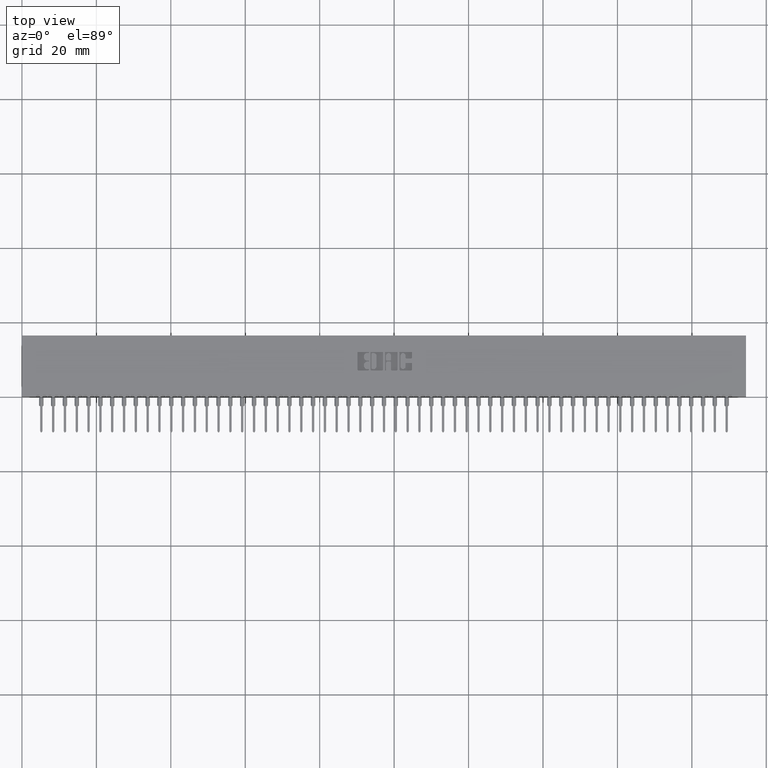
[diagram: clean part render]
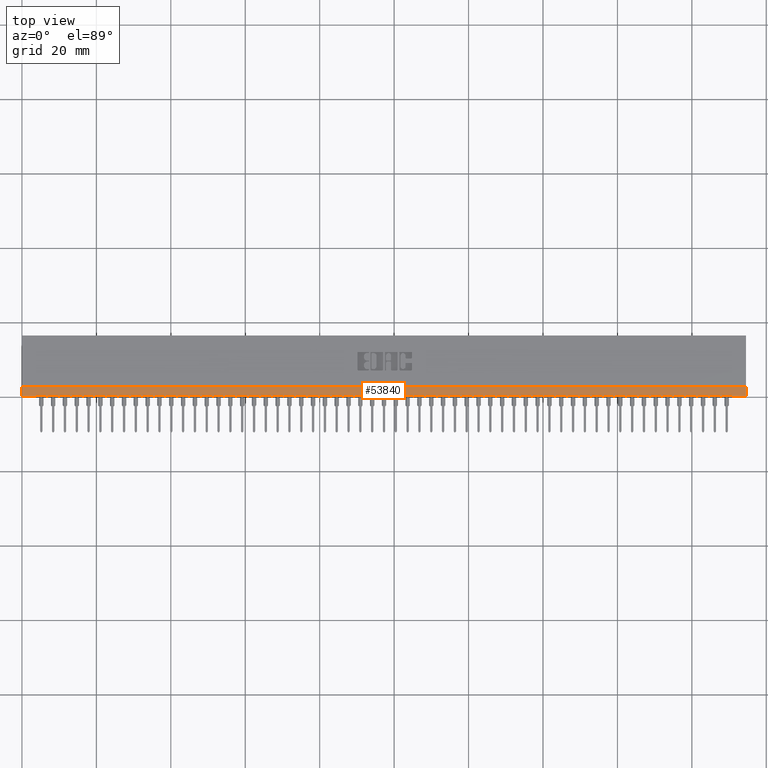
[diagram: same view with one face highlighted and labeled with its STEP entity id]
A machine part, top view. The second image highlights one B-rep face of the part: STEP entity #53840.
In plain terms, the highlighted planar face has unit normal (0, 0, -1).
Its self-contained STEP definition (entity closure, byte-faithful):
#89 = DIRECTION ( 'NONE',  ( -0.0000000000000000000, 0.0000000000000000000, 1.000000000000000000 ) ) ;
#309 = LINE ( 'NONE', #55051, #30331 ) ;
#367 = VERTEX_POINT ( 'NONE', #25465 ) ;
#446 = DIRECTION ( 'NONE',  ( 1.000000000000000000, -0.0000000000000000000, -2.307304048702925122E-16 ) ) ;
#470 = VECTOR ( 'NONE', #79859, 39.37007874015748143 ) ;
#522 = DIRECTION ( 'NONE',  ( 1.000000000000000000, -0.0000000000000000000, -2.307304048702925122E-16 ) ) ;
#548 = CARTESIAN_POINT ( 'NONE',  ( 7.407499999999998863, 0.01499999999999997169, -0.02500000000000000486 ) ) ;
#567 = ORIENTED_EDGE ( 'NONE', *, *, #67884, .T. ) ;
#638 = LINE ( 'NONE', #9580, #42844 ) ;
#649 = EDGE_CURVE ( 'NONE', #25086, #1418, #24449, .T. ) ;
#869 = CARTESIAN_POINT ( 'NONE',  ( 7.002499999999999503, 0.01499999999999997169, -0.02500000000000000486 ) ) ;
#894 = EDGE_CURVE ( 'NONE', #21151, #81148, #66125, .T. ) ;
#923 = DIRECTION ( 'NONE',  ( -0.0000000000000000000, 0.0000000000000000000, 1.000000000000000000 ) ) ;
#1099 = LINE ( 'NONE', #68873, #9127 ) ;
#1418 = VERTEX_POINT ( 'NONE', #77551 ) ;
#1555 = VERTEX_POINT ( 'NONE', #12038 ) ;
#1594 = VERTEX_POINT ( 'NONE', #66740 ) ;
#1644 = LINE ( 'NONE', #76136, #21243 ) ;
#1691 = CARTESIAN_POINT ( 'NONE',  ( 0.3924999999999996825, 0.01499999999999997169, -0.02500000000000000486 ) ) ;
#1698 = VECTOR ( 'NONE', #29809, 39.37007874015748143 ) ;
#1824 = DIRECTION ( 'NONE',  ( 1.000000000000000000, 0.0000000000000000000, 0.0000000000000000000 ) ) ;
#1828 = AXIS2_PLACEMENT_3D ( 'NONE', #80375, #51238, #24320 ) ;
#1832 = AXIS2_PLACEMENT_3D ( 'NONE', #43497, #12068, #25957 ) ;
#1988 = CARTESIAN_POINT ( 'NONE',  ( 7.267499999999999183, 0.01499999999999997169, -0.02500000000000000486 ) ) ;
#2047 = DIRECTION ( 'NONE',  ( -0.0000000000000000000, 0.0000000000000000000, 1.000000000000000000 ) ) ;
#2123 = VERTEX_POINT ( 'NONE', #11932 ) ;
#2132 = VERTEX_POINT ( 'NONE', #25826 ) ;
#2216 = CARTESIAN_POINT ( 'NONE',  ( 5.282499999999998863, 0.01499999999999997169, -0.02500000000000000486 ) ) ;
#2250 = AXIS2_PLACEMENT_3D ( 'NONE', #78733, #17286, #25327 ) ;
#2257 = CARTESIAN_POINT ( 'NONE',  ( 5.032499999999999751, 0.01499999999999997169, -0.02500000000000000486 ) ) ;
#2314 = DIRECTION ( 'NONE',  ( -0.0000000000000000000, 0.0000000000000000000, 1.000000000000000000 ) ) ;
#2399 = CARTESIAN_POINT ( 'NONE',  ( 6.627499999999999503, 0.01499999999999997169, -0.02500000000000000486 ) ) ;
#2461 = EDGE_CURVE ( 'NONE', #16832, #24253, #47584, .T. ) ;
#2489 = VERTEX_POINT ( 'NONE', #32913 ) ;
#2826 = DIRECTION ( 'NONE',  ( 1.000000000000000000, 0.0000000000000000000, 0.0000000000000000000 ) ) ;
#2915 = CIRCLE ( 'NONE', #30151, 0.01499999999999970281 ) ;
#2945 = LINE ( 'NONE', #24461, #13525 ) ;
#3104 = CARTESIAN_POINT ( 'NONE',  ( 5.002500000000000391, 0.01499999999999997169, -0.02500000000000000486 ) ) ;
#3132 = EDGE_CURVE ( 'NONE', #64035, #45987, #33514, .T. ) ;
#3202 = AXIS2_PLACEMENT_3D ( 'NONE', #20953, #68069, #75232 ) ;
#3341 = LINE ( 'NONE', #79924, #41607 ) ;
#3435 = DIRECTION ( 'NONE',  ( 1.000000000000000000, -0.0000000000000000000, -2.307304048702925122E-16 ) ) ;
#3464 = ORIENTED_EDGE ( 'NONE', *, *, #86559, .T. ) ;
#3621 = DIRECTION ( 'NONE',  ( -1.000000000000000000, -0.0000000000000000000, -0.0000000000000000000 ) ) ;
#3629 = CARTESIAN_POINT ( 'NONE',  ( 2.627499999999999947, 0.01499999999999997169, -0.02500000000000000486 ) ) ;
#3754 = DIRECTION ( 'NONE',  ( 1.000000000000000000, 0.0000000000000000000, 0.0000000000000000000 ) ) ;
#3912 = CARTESIAN_POINT ( 'NONE',  ( 4.308999999999999275, 0.01499999999999999424, -0.02500000000000003608 ) ) ;
#4038 = LINE ( 'NONE', #80286, #50246 ) ;
#4200 = DIRECTION ( 'NONE',  ( 1.000000000000000000, 0.0000000000000000000, 0.0000000000000000000 ) ) ;
#4585 = EDGE_CURVE ( 'NONE', #46723, #21055, #56684, .T. ) ;
#4639 = CIRCLE ( 'NONE', #84788, 0.01500000000000024925 ) ;
#4944 = VERTEX_POINT ( 'NONE', #69690 ) ;
#4956 = AXIS2_PLACEMENT_3D ( 'NONE', #54286, #49324, #48889 ) ;
#5081 = ORIENTED_EDGE ( 'NONE', *, *, #63982, .T. ) ;
#5139 = ORIENTED_EDGE ( 'NONE', *, *, #86544, .T. ) ;
#5212 = CARTESIAN_POINT ( 'NONE',  ( 7.517499999999998295, 0.01499999999999997169, -0.02500000000000000486 ) ) ;
#5604 = ORIENTED_EDGE ( 'NONE', *, *, #649, .T. ) ;
#5611 = VERTEX_POINT ( 'NONE', #25117 ) ;
#5795 = DIRECTION ( 'NONE',  ( -0.0000000000000000000, 0.0000000000000000000, 1.000000000000000000 ) ) ;
#5846 = CARTESIAN_POINT ( 'NONE',  ( 3.017499999999999627, 0.01499999999999997169, -0.02500000000000000486 ) ) ;
#5896 = ORIENTED_EDGE ( 'NONE', *, *, #3132, .T. ) ;
#5947 = ORIENTED_EDGE ( 'NONE', *, *, #10714, .T. ) ;
#6132 = CIRCLE ( 'NONE', #1832, 0.01499999999999970281 ) ;
#6141 = ORIENTED_EDGE ( 'NONE', *, *, #45126, .T. ) ;
#6149 = EDGE_CURVE ( 'NONE', #40741, #11549, #22462, .T. ) ;
#6198 = EDGE_CURVE ( 'NONE', #73315, #74325, #13927, .T. ) ;
#6229 = EDGE_CURVE ( 'NONE', #1594, #58783, #83159, .T. ) ;
#6364 = VECTOR ( 'NONE', #81389, 39.37007874015748143 ) ;
#6367 = DIRECTION ( 'NONE',  ( -0.0000000000000000000, 0.0000000000000000000, 1.000000000000000000 ) ) ;
#6462 = DIRECTION ( 'NONE',  ( 1.000000000000000000, -0.0000000000000000000, -2.307304048702925122E-16 ) ) ;
#6541 = CARTESIAN_POINT ( 'NONE',  ( 4.767500000000000071, 0.01499999999999997169, -0.02500000000000000486 ) ) ;
#6570 = AXIS2_PLACEMENT_3D ( 'NONE', #26424, #5795, #60521 ) ;
#6610 = EDGE_CURVE ( 'NONE', #11984, #69718, #41821, .T. ) ;
#6676 = LINE ( 'NONE', #82461, #45361 ) ;
#6795 = CARTESIAN_POINT ( 'NONE',  ( 7.017499999999999183, 0.01499999999999997169, -0.02500000000000000486 ) ) ;
#6895 = CARTESIAN_POINT ( 'NONE',  ( 6.183999999999998387, 0.01499999999999999424, -0.02500000000000003608 ) ) ;
#6921 = LINE ( 'NONE', #49501, #74969 ) ;
#6985 = VECTOR ( 'NONE', #47713, 39.37007874015748143 ) ;
#6989 = DIRECTION ( 'NONE',  ( 1.000000000000000000, 0.0000000000000000000, 0.0000000000000000000 ) ) ;
#7025 = VERTEX_POINT ( 'NONE', #62330 ) ;
#7026 = VERTEX_POINT ( 'NONE', #76668 ) ;
#7321 = CARTESIAN_POINT ( 'NONE',  ( 3.377499999999999503, 0.01499999999999997169, -0.02500000000000000486 ) ) ;
#7363 = EDGE_CURVE ( 'NONE', #39398, #7554, #34089, .T. ) ;
#7408 = CARTESIAN_POINT ( 'NONE',  ( 3.532499999999999751, 0.01499999999999997169, -0.02500000000000000486 ) ) ;
#7436 = CARTESIAN_POINT ( 'NONE',  ( 0.6839999999999997193, 0.01499999999999999424, -0.02500000000000003608 ) ) ;
#7444 = VERTEX_POINT ( 'NONE', #75930 ) ;
#7495 = CARTESIAN_POINT ( 'NONE',  ( 1.252499999999999503, 0.01499999999999997169, -0.02500000000000000486 ) ) ;
#7554 = VERTEX_POINT ( 'NONE', #548 ) ;
#7685 = CARTESIAN_POINT ( 'NONE',  ( 5.752499999999999503, 0.01499999999999997169, -0.02500000000000000486 ) ) ;
#7808 = DIRECTION ( 'NONE',  ( -0.0000000000000000000, 0.0000000000000000000, 1.000000000000000000 ) ) ;
#7841 = ORIENTED_EDGE ( 'NONE', *, *, #87014, .T. ) ;
#7900 = ORIENTED_EDGE ( 'NONE', *, *, #51450, .T. ) ;
#7913 = CARTESIAN_POINT ( 'NONE',  ( 1.157499999999999751, 0.01499999999999997169, -0.02500000000000000486 ) ) ;
#7917 = CARTESIAN_POINT ( 'NONE',  ( 2.377499999999999503, 0.01499999999999997169, -0.02500000000000000486 ) ) ;
#7982 = VERTEX_POINT ( 'NONE', #55619 ) ;
#8070 = EDGE_CURVE ( 'NONE', #23116, #12370, #37023, .T. ) ;
#8104 = CIRCLE ( 'NONE', #13899, 0.01500000000000024925 ) ;
#8143 = CARTESIAN_POINT ( 'NONE',  ( 4.058999999999999275, 0.01499999999999999424, -0.02500000000000003608 ) ) ;
#8250 = VECTOR ( 'NONE', #54409, 39.37007874015748143 ) ;
#8251 = CARTESIAN_POINT ( 'NONE',  ( 1.377499999999999725, 0.01499999999999997169, -0.02500000000000000486 ) ) ;
#8345 = VERTEX_POINT ( 'NONE', #46586 ) ;
#8511 = LINE ( 'NONE', #35439, #88276 ) ;
#8577 = CARTESIAN_POINT ( 'NONE',  ( 6.767499999999999183, 0.01499999999999997169, -0.02500000000000000486 ) ) ;
#8853 = EDGE_CURVE ( 'NONE', #57873, #73315, #62589, .T. ) ;
#8917 = VERTEX_POINT ( 'NONE', #7408 ) ;
#9006 = CARTESIAN_POINT ( 'NONE',  ( 5.142499999999999183, 0.01499999999999997169, -0.02500000000000000486 ) ) ;
#9028 = ORIENTED_EDGE ( 'NONE', *, *, #87600, .T. ) ;
#9106 = ORIENTED_EDGE ( 'NONE', *, *, #22216, .T. ) ;
#9127 = VECTOR ( 'NONE', #41526, 39.37007874015748143 ) ;
#9239 = VERTEX_POINT ( 'NONE', #42635 ) ;
#9255 = AXIS2_PLACEMENT_3D ( 'NONE', #86253, #11370, #23035 ) ;
#9277 = DIRECTION ( 'NONE',  ( 1.000000000000000000, 0.0000000000000000000, 0.0000000000000000000 ) ) ;
#9380 = DIRECTION ( 'NONE',  ( 0.0000000000000000000, -0.0000000000000000000, -1.000000000000000000 ) ) ;
#9447 = DIRECTION ( 'NONE',  ( 1.000000000000000000, 0.0000000000000000000, 0.0000000000000000000 ) ) ;
#9579 = LINE ( 'NONE', #44127, #15225 ) ;
#9580 = CARTESIAN_POINT ( 'NONE',  ( 5.808999999999999275, 0.01499999999999999424, -0.02500000000000003608 ) ) ;
#9686 = ORIENTED_EDGE ( 'NONE', *, *, #78270, .T. ) ;
#9742 = CARTESIAN_POINT ( 'NONE',  ( 6.782499999999998863, 0.01499999999999997169, -0.02500000000000000486 ) ) ;
#9824 = CIRCLE ( 'NONE', #57076, 0.01499999999999997689 ) ;
#9864 = CIRCLE ( 'NONE', #81520, 0.01499999999999970281 ) ;
#9865 = VECTOR ( 'NONE', #66118, 39.37007874015748143 ) ;
#9941 = EDGE_CURVE ( 'NONE', #74325, #58008, #37552, .T. ) ;
#9962 = VERTEX_POINT ( 'NONE', #40658 ) ;
#9963 = EDGE_CURVE ( 'NONE', #61464, #77841, #42014, .T. ) ;
#10010 = ORIENTED_EDGE ( 'NONE', *, *, #83358, .T. ) ;
#10135 = CARTESIAN_POINT ( 'NONE',  ( 6.558999999999998387, 0.01499999999999999424, -0.02500000000000003608 ) ) ;
#10159 = ORIENTED_EDGE ( 'NONE', *, *, #79007, .F. ) ;
#10410 = CARTESIAN_POINT ( 'NONE',  ( 4.558999999999999275, 0.01499999999999999424, -0.02500000000000003608 ) ) ;
#10527 = LINE ( 'NONE', #38794, #9865 ) ;
#10574 = CARTESIAN_POINT ( 'NONE',  ( 0.6574999999999997513, 0.01499999999999997169, -0.02500000000000000486 ) ) ;
#10588 = VERTEX_POINT ( 'NONE', #7321 ) ;
#10609 = AXIS2_PLACEMENT_3D ( 'NONE', #74043, #86177, #53422 ) ;
#10622 = DIRECTION ( 'NONE',  ( 1.000000000000000000, -0.0000000000000000000, -2.307304048702925122E-16 ) ) ;
#10670 = ORIENTED_EDGE ( 'NONE', *, *, #77611, .T. ) ;
#10690 = EDGE_CURVE ( 'NONE', #61324, #47260, #84435, .T. ) ;
#10714 = EDGE_CURVE ( 'NONE', #24323, #367, #77900, .T. ) ;
#10723 = EDGE_CURVE ( 'NONE', #85034, #46928, #23427, .T. ) ;
#10962 = ORIENTED_EDGE ( 'NONE', *, *, #82115, .T. ) ;
#11124 = CIRCLE ( 'NONE', #35531, 0.01500000000000024925 ) ;
#11126 = DIRECTION ( 'NONE',  ( 1.000000000000000000, 0.0000000000000000000, 0.0000000000000000000 ) ) ;
#11247 = DIRECTION ( 'NONE',  ( 1.000000000000000000, -0.0000000000000000000, -2.307304048702925122E-16 ) ) ;
#11370 = DIRECTION ( 'NONE',  ( -0.0000000000000000000, 0.0000000000000000000, 1.000000000000000000 ) ) ;
#11506 = VERTEX_POINT ( 'NONE', #24195 ) ;
#11549 = VERTEX_POINT ( 'NONE', #57837 ) ;
#11706 = CARTESIAN_POINT ( 'NONE',  ( 6.142499999999999183, 0.01499999999999997169, -0.02500000000000000486 ) ) ;
#11729 = CARTESIAN_POINT ( 'NONE',  ( 5.532499999999999751, 0.01499999999999997169, -0.02500000000000000486 ) ) ;
#11824 = ORIENTED_EDGE ( 'NONE', *, *, #86118, .T. ) ;
#11822 = PLANE ( 'NONE',  #87019 ) ;
#11932 = CARTESIAN_POINT ( 'NONE',  ( 0.0000000000000000000, 0.1000000000000000056, -0.02500000000000000486 ) ) ;
#11934 = EDGE_CURVE ( 'NONE', #47861, #57873, #86685, .T. ) ;
#11984 = VERTEX_POINT ( 'NONE', #47707 ) ;
#12038 = CARTESIAN_POINT ( 'NONE',  ( 2.907499999999999307, 0.01499999999999997169, -0.02500000000000000486 ) ) ;
#12068 = DIRECTION ( 'NONE',  ( -0.0000000000000000000, 0.0000000000000000000, 1.000000000000000000 ) ) ;
#12084 = CARTESIAN_POINT ( 'NONE',  ( 6.392499999999999183, 0.01499999999999997169, -0.02500000000000000486 ) ) ;
#12170 = ORIENTED_EDGE ( 'NONE', *, *, #81219, .T. ) ;
#12247 = DIRECTION ( 'NONE',  ( 1.000000000000000000, -0.0000000000000000000, -2.307304048702925122E-16 ) ) ;
#12258 = CARTESIAN_POINT ( 'NONE',  ( 1.767499999999999627, 0.01499999999999997169, -0.02500000000000000486 ) ) ;
#12297 = VECTOR ( 'NONE', #64601, 39.37007874015748143 ) ;
#12370 = VERTEX_POINT ( 'NONE', #19373 ) ;
#12438 = ORIENTED_EDGE ( 'NONE', *, *, #43291, .T. ) ;
#12446 = CARTESIAN_POINT ( 'NONE',  ( 4.377499999999999503, 0.01499999999999997169, -0.02500000000000000486 ) ) ;
#12552 = VERTEX_POINT ( 'NONE', #76725 ) ;
#12862 = VECTOR ( 'NONE', #61997, 39.37007874015748143 ) ;
#12914 = EDGE_CURVE ( 'NONE', #61414, #44479, #68126, .T. ) ;
#13250 = DIRECTION ( 'NONE',  ( 1.000000000000000000, 0.0000000000000000000, 0.0000000000000000000 ) ) ;
#13440 = AXIS2_PLACEMENT_3D ( 'NONE', #54505, #66176, #20421 ) ;
#13525 = VECTOR ( 'NONE', #17753, 39.37007874015748143 ) ;
#13542 = CARTESIAN_POINT ( 'NONE',  ( 1.127499999999999725, 0.01499999999999997169, -0.02500000000000000486 ) ) ;
#13567 = ORIENTED_EDGE ( 'NONE', *, *, #20925, .T. ) ;
#13679 = EDGE_CURVE ( 'NONE', #21055, #58240, #33844, .T. ) ;
#13693 = DIRECTION ( 'NONE',  ( 1.000000000000000000, -0.0000000000000000000, -2.307304048702925122E-16 ) ) ;
#13712 = ORIENTED_EDGE ( 'NONE', *, *, #894, .T. ) ;
#13732 = LINE ( 'NONE', #28045, #60015 ) ;
#13884 = ORIENTED_EDGE ( 'NONE', *, *, #35014, .T. ) ;
#13892 = VERTEX_POINT ( 'NONE', #86557 ) ;
#13899 = AXIS2_PLACEMENT_3D ( 'NONE', #51194, #17116, #44474 ) ;
#13927 = CIRCLE ( 'NONE', #33954, 0.01499999999999997689 ) ;
#13987 = CARTESIAN_POINT ( 'NONE',  ( 4.183999999999999275, 0.01499999999999999424, -0.02500000000000003608 ) ) ;
#14019 = VERTEX_POINT ( 'NONE', #74864 ) ;
#14040 = VECTOR ( 'NONE', #40219, 39.37007874015748143 ) ;
#14065 = CARTESIAN_POINT ( 'NONE',  ( 0.1574999999999997236, 0.01499999999999997169, -0.02500000000000000486 ) ) ;
#14401 = EDGE_CURVE ( 'NONE', #44479, #55251, #46083, .T. ) ;
#14404 = CARTESIAN_POINT ( 'NONE',  ( 1.907499999999999529, 0.01499999999999997169, -0.02500000000000000486 ) ) ;
#14472 = LINE ( 'NONE', #8143, #28252 ) ;
#14477 = VERTEX_POINT ( 'NONE', #87789 ) ;
#14609 = ORIENTED_EDGE ( 'NONE', *, *, #37626, .T. ) ;
#14646 = LINE ( 'NONE', #7436, #79784 ) ;
#14735 = VECTOR ( 'NONE', #41632, 39.37007874015748143 ) ;
#15153 = CARTESIAN_POINT ( 'NONE',  ( 5.517499999999999183, 0.01499999999999997169, -0.02500000000000000486 ) ) ;
#15225 = VECTOR ( 'NONE', #72801, 39.37007874015748143 ) ;
#15303 = CARTESIAN_POINT ( 'NONE',  ( 5.892499999999999183, 0.01499999999999997169, -0.02500000000000000486 ) ) ;
#15404 = CARTESIAN_POINT ( 'NONE',  ( 7.660000000000000142, 0.0000000000000000000, -0.02500000000000000486 ) ) ;
#15607 = LINE ( 'NONE', #77905, #36310 ) ;
#15924 = EDGE_CURVE ( 'NONE', #58240, #61324, #8104, .T. ) ;
#16045 = ORIENTED_EDGE ( 'NONE', *, *, #50672, .T. ) ;
#16123 = VECTOR ( 'NONE', #53995, 39.37007874015748143 ) ;
#16224 = CIRCLE ( 'NONE', #74950, 0.01499999999999970281 ) ;
#16298 = VERTEX_POINT ( 'NONE', #23279 ) ;
#16401 = VERTEX_POINT ( 'NONE', #68098 ) ;
#16524 = ORIENTED_EDGE ( 'NONE', *, *, #39998, .T. ) ;
#16609 = LINE ( 'NONE', #23768, #12297 ) ;
#16638 = ORIENTED_EDGE ( 'NONE', *, *, #23334, .T. ) ;
#16705 = EDGE_CURVE ( 'NONE', #2123, #7444, #19561, .T. ) ;
#16706 = ORIENTED_EDGE ( 'NONE', *, *, #8070, .F. ) ;
#16775 = LINE ( 'NONE', #36983, #1698 ) ;
#16832 = VERTEX_POINT ( 'NONE', #88177 ) ;
#16853 = VERTEX_POINT ( 'NONE', #54087 ) ;
#16961 = DIRECTION ( 'NONE',  ( -0.0000000000000000000, 0.0000000000000000000, 1.000000000000000000 ) ) ;
#17037 = DIRECTION ( 'NONE',  ( 1.000000000000000000, -0.0000000000000000000, -2.307304048702925122E-16 ) ) ;
#17049 = CARTESIAN_POINT ( 'NONE',  ( 1.017499999999999627, 0.01499999999999997169, -0.02500000000000000486 ) ) ;
#17101 = AXIS2_PLACEMENT_3D ( 'NONE', #12084, #65456, #65020 ) ;
#17116 = DIRECTION ( 'NONE',  ( -0.0000000000000000000, 0.0000000000000000000, 1.000000000000000000 ) ) ;
#17130 = AXIS2_PLACEMENT_3D ( 'NONE', #68746, #49416, #34650 ) ;
#17159 = EDGE_CURVE ( 'NONE', #65947, #64172, #11124, .T. ) ;
#17286 = DIRECTION ( 'NONE',  ( -0.0000000000000000000, 0.0000000000000000000, 1.000000000000000000 ) ) ;
#17341 = VERTEX_POINT ( 'NONE', #14404 ) ;
#17405 = AXIS2_PLACEMENT_3D ( 'NONE', #64295, #55015, #2826 ) ;
#17526 = CARTESIAN_POINT ( 'NONE',  ( 5.433999999999999275, 0.01499999999999999424, -0.02500000000000003608 ) ) ;
#17534 = DIRECTION ( 'NONE',  ( 1.000000000000000000, 0.0000000000000000000, 0.0000000000000000000 ) ) ;
#17622 = ORIENTED_EDGE ( 'NONE', *, *, #30776, .T. ) ;
#17671 = DIRECTION ( 'NONE',  ( -0.0000000000000000000, 0.0000000000000000000, 1.000000000000000000 ) ) ;
#17753 = DIRECTION ( 'NONE',  ( 1.000000000000000000, -0.0000000000000000000, -2.307304048702925122E-16 ) ) ;
#17785 = CARTESIAN_POINT ( 'NONE',  ( 0.8774999999999997247, 0.01499999999999997169, -0.02500000000000000486 ) ) ;
#17854 = CIRCLE ( 'NONE', #46539, 0.01500000000000024925 ) ;
#17856 = CARTESIAN_POINT ( 'NONE',  ( 0.4074999999999996958, 0.01499999999999997169, -0.02500000000000000486 ) ) ;
#17969 = DIRECTION ( 'NONE',  ( -0.0000000000000000000, 0.0000000000000000000, 1.000000000000000000 ) ) ;
#17995 = EDGE_CURVE ( 'NONE', #10588, #49394, #65659, .T. ) ;
#18080 = ORIENTED_EDGE ( 'NONE', *, *, #77327, .T. ) ;
#18092 = ORIENTED_EDGE ( 'NONE', *, *, #36657, .T. ) ;
#18108 = CARTESIAN_POINT ( 'NONE',  ( 7.392499999999999183, 0.01499999999999997169, -0.02500000000000000486 ) ) ;
#18115 = DIRECTION ( 'NONE',  ( -0.0000000000000000000, 0.0000000000000000000, 1.000000000000000000 ) ) ;
#18137 = AXIS2_PLACEMENT_3D ( 'NONE', #1691, #61428, #69904 ) ;
#18189 = VECTOR ( 'NONE', #77220, 39.37007874015748143 ) ;
#18252 = ORIENTED_EDGE ( 'NONE', *, *, #73029, .T. ) ;
#18316 = VECTOR ( 'NONE', #75159, 39.37007874015748143 ) ;
#18850 = CARTESIAN_POINT ( 'NONE',  ( 5.407499999999999751, 0.01499999999999997169, -0.02500000000000000486 ) ) ;
#18920 = CARTESIAN_POINT ( 'NONE',  ( 6.377499999999999503, 0.01499999999999997169, -0.02500000000000000486 ) ) ;
#18948 = ORIENTED_EDGE ( 'NONE', *, *, #38114, .T. ) ;
#18949 = VERTEX_POINT ( 'NONE', #13542 ) ;
#19000 = CARTESIAN_POINT ( 'NONE',  ( 2.127499999999999503, 0.01499999999999997169, -0.02500000000000000486 ) ) ;
#19276 = VECTOR ( 'NONE', #78603, 39.37007874015748143 ) ;
#19315 = DIRECTION ( 'NONE',  ( 1.000000000000000000, 0.0000000000000000000, 0.0000000000000000000 ) ) ;
#19373 = CARTESIAN_POINT ( 'NONE',  ( 0.1424999999999997102, 0.0000000000000000000, -0.02500000000000000486 ) ) ;
#19394 = CIRCLE ( 'NONE', #76613, 0.01499999999999997689 ) ;
#19481 = CARTESIAN_POINT ( 'NONE',  ( 5.058999999999998387, 0.01499999999999999424, -0.02500000000000003608 ) ) ;
#19561 = LINE ( 'NONE', #87310, #14040 ) ;
#19825 = DIRECTION ( 'NONE',  ( 1.000000000000000000, 0.0000000000000000000, 0.0000000000000000000 ) ) ;
#19876 = CIRCLE ( 'NONE', #45678, 0.01500000000000024925 ) ;
#20129 = ORIENTED_EDGE ( 'NONE', *, *, #83253, .T. ) ;
#20421 = DIRECTION ( 'NONE',  ( 1.000000000000000000, 0.0000000000000000000, 0.0000000000000000000 ) ) ;
#20776 = DIRECTION ( 'NONE',  ( 1.000000000000000000, 0.0000000000000000000, 0.0000000000000000000 ) ) ;
#20807 = VERTEX_POINT ( 'NONE', #18920 ) ;
#20882 = VERTEX_POINT ( 'NONE', #60616 ) ;
#20925 = EDGE_CURVE ( 'NONE', #46798, #11506, #21121, .T. ) ;
#20953 = CARTESIAN_POINT ( 'NONE',  ( 1.517499999999999849, 0.01499999999999997169, -0.02500000000000000486 ) ) ;
#21054 = ORIENTED_EDGE ( 'NONE', *, *, #35945, .T. ) ;
#21055 = VERTEX_POINT ( 'NONE', #69999 ) ;
#21121 = LINE ( 'NONE', #35029, #67453 ) ;
#21151 = VERTEX_POINT ( 'NONE', #3104 ) ;
#21243 = VECTOR ( 'NONE', #35776, 39.37007874015748143 ) ;
#21492 = CARTESIAN_POINT ( 'NONE',  ( 6.907499999999999751, 0.01499999999999997169, -0.02500000000000000486 ) ) ;
#21579 = VERTEX_POINT ( 'NONE', #80148 ) ;
#21681 = LINE ( 'NONE', #15404, #78641 ) ;
#21696 = VECTOR ( 'NONE', #446, 39.37007874015748143 ) ;
#21762 = DIRECTION ( 'NONE',  ( 1.000000000000000000, -0.0000000000000000000, -2.307304048702925122E-16 ) ) ;
#22027 = CARTESIAN_POINT ( 'NONE',  ( 5.183999999999999275, 0.01499999999999999424, -0.02500000000000003608 ) ) ;
#22122 = EDGE_CURVE ( 'NONE', #68423, #64035, #3341, .T. ) ;
#22216 = EDGE_CURVE ( 'NONE', #60873, #61414, #62393, .T. ) ;
#22409 = CIRCLE ( 'NONE', #18137, 0.01499999999999997689 ) ;
#22443 = VECTOR ( 'NONE', #44311, 39.37007874015748143 ) ;
#22462 = CIRCLE ( 'NONE', #32549, 0.01500000000000024925 ) ;
#22860 = DIRECTION ( 'NONE',  ( 1.000000000000000000, 0.0000000000000000000, 0.0000000000000000000 ) ) ;
#22890 = ORIENTED_EDGE ( 'NONE', *, *, #31037, .F. ) ;
#22994 = DIRECTION ( 'NONE',  ( -1.000000000000000000, -0.0000000000000000000, -0.0000000000000000000 ) ) ;
#23028 = CARTESIAN_POINT ( 'NONE',  ( 3.642499999999999627, 0.01499999999999997169, -0.02500000000000000486 ) ) ;
#23035 = DIRECTION ( 'NONE',  ( 1.000000000000000000, 0.0000000000000000000, 0.0000000000000000000 ) ) ;
#23116 = VERTEX_POINT ( 'NONE', #14065 ) ;
#23262 = AXIS2_PLACEMENT_3D ( 'NONE', #8577, #63293, #1824 ) ;
#23279 = CARTESIAN_POINT ( 'NONE',  ( 3.502499999999999503, 0.01499999999999997169, -0.02500000000000000486 ) ) ;
#23297 = CARTESIAN_POINT ( 'NONE',  ( 7.377499999999999503, 0.01499999999999997169, -0.02500000000000000486 ) ) ;
#23327 = VECTOR ( 'NONE', #39508, 39.37007874015748143 ) ;
#23334 = EDGE_CURVE ( 'NONE', #76798, #16401, #33139, .T. ) ;
#23357 = VECTOR ( 'NONE', #53744, 39.37007874015748143 ) ;
#23427 = LINE ( 'NONE', #10410, #19276 ) ;
#23469 = CIRCLE ( 'NONE', #43517, 0.01499999999999997689 ) ;
#23485 = VECTOR ( 'NONE', #44069, 39.37007874015748143 ) ;
#23512 = EDGE_CURVE ( 'NONE', #1555, #7026, #49223, .T. ) ;
#23623 = CIRCLE ( 'NONE', #36530, 0.01500000000000024925 ) ;
#23701 = ORIENTED_EDGE ( 'NONE', *, *, #47191, .T. ) ;
#23768 = CARTESIAN_POINT ( 'NONE',  ( 3.308999999999999719, 0.01499999999999999424, -0.02500000000000003608 ) ) ;
#23934 = EDGE_CURVE ( 'NONE', #9962, #61464, #13732, .T. ) ;
#24156 = EDGE_CURVE ( 'NONE', #72082, #26455, #9864, .T. ) ;
#24195 = CARTESIAN_POINT ( 'NONE',  ( 2.252499999999999503, 0.01499999999999997169, -0.02500000000000000486 ) ) ;
#24253 = VERTEX_POINT ( 'NONE', #52644 ) ;
#24320 = DIRECTION ( 'NONE',  ( 1.000000000000000000, 0.0000000000000000000, 0.0000000000000000000 ) ) ;
#24323 = VERTEX_POINT ( 'NONE', #66999 ) ;
#24449 = CIRCLE ( 'NONE', #47388, 0.01499999999999970281 ) ;
#24461 = CARTESIAN_POINT ( 'NONE',  ( 1.058999999999999719, 0.01499999999999999424, -0.02500000000000003608 ) ) ;
#24564 = ORIENTED_EDGE ( 'NONE', *, *, #4585, .T. ) ;
#24582 = ORIENTED_EDGE ( 'NONE', *, *, #30990, .T. ) ;
#24847 = VERTEX_POINT ( 'NONE', #2216 ) ;
#25086 = VERTEX_POINT ( 'NONE', #71725 ) ;
#25102 = ORIENTED_EDGE ( 'NONE', *, *, #83553, .T. ) ;
#25117 = CARTESIAN_POINT ( 'NONE',  ( 1.657499999999999529, 0.01499999999999997169, -0.02500000000000000486 ) ) ;
#25152 = DIRECTION ( 'NONE',  ( -0.0000000000000000000, 0.0000000000000000000, 1.000000000000000000 ) ) ;
#25250 = CIRCLE ( 'NONE', #48187, 0.01499999999999997689 ) ;
#25291 = DIRECTION ( 'NONE',  ( 1.000000000000000000, -0.0000000000000000000, -2.307304048702925122E-16 ) ) ;
#25327 = DIRECTION ( 'NONE',  ( 1.000000000000000000, 0.0000000000000000000, 0.0000000000000000000 ) ) ;
#25465 = CARTESIAN_POINT ( 'NONE',  ( 4.907499999999999751, 0.01499999999999997169, -0.02500000000000000486 ) ) ;
#25622 = DIRECTION ( 'NONE',  ( -0.0000000000000000000, 0.0000000000000000000, 1.000000000000000000 ) ) ;
#25826 = CARTESIAN_POINT ( 'NONE',  ( 5.782499999999999751, 0.01499999999999997169, -0.02500000000000000486 ) ) ;
#25866 = VECTOR ( 'NONE', #56545, 39.37007874015748143 ) ;
#25924 = AXIS2_PLACEMENT_3D ( 'NONE', #82211, #74160, #20776 ) ;
#25957 = DIRECTION ( 'NONE',  ( 1.000000000000000000, 0.0000000000000000000, 0.0000000000000000000 ) ) ;
#26086 = DIRECTION ( 'NONE',  ( 1.000000000000000000, -0.0000000000000000000, -2.307304048702925122E-16 ) ) ;
#26341 = EDGE_CURVE ( 'NONE', #20807, #7025, #67233, .T. ) ;
#26347 = LINE ( 'NONE', #17526, #62701 ) ;
#26424 = CARTESIAN_POINT ( 'NONE',  ( 4.267500000000000071, 0.01499999999999997169, -0.02500000000000000486 ) ) ;
#26455 = VERTEX_POINT ( 'NONE', #60964 ) ;
#26475 = CARTESIAN_POINT ( 'NONE',  ( 3.433999999999999275, 0.01499999999999999424, -0.02500000000000003608 ) ) ;
#26553 = ORIENTED_EDGE ( 'NONE', *, *, #79415, .T. ) ;
#26748 = LINE ( 'NONE', #32608, #32904 ) ;
#26876 = CIRCLE ( 'NONE', #77000, 0.01499999999999970281 ) ;
#27323 = ORIENTED_EDGE ( 'NONE', *, *, #49507, .T. ) ;
#27423 = DIRECTION ( 'NONE',  ( 1.000000000000000000, -0.0000000000000000000, -2.307304048702925122E-16 ) ) ;
#27427 = VERTEX_POINT ( 'NONE', #49866 ) ;
#27437 = DIRECTION ( 'NONE',  ( 1.000000000000000000, 0.0000000000000000000, 0.0000000000000000000 ) ) ;
#27849 = AXIS2_PLACEMENT_3D ( 'NONE', #50784, #51234, #37357 ) ;
#27932 = ORIENTED_EDGE ( 'NONE', *, *, #29730, .T. ) ;
#28006 = ORIENTED_EDGE ( 'NONE', *, *, #47125, .T. ) ;
#28033 = ORIENTED_EDGE ( 'NONE', *, *, #86353, .T. ) ;
#28045 = CARTESIAN_POINT ( 'NONE',  ( 4.683999999999999275, 0.01499999999999999424, -0.02500000000000003608 ) ) ;
#28047 = ORIENTED_EDGE ( 'NONE', *, *, #39775, .T. ) ;
#28113 = VERTEX_POINT ( 'NONE', #33466 ) ;
#28252 = VECTOR ( 'NONE', #35085, 39.37007874015748143 ) ;
#28264 = DIRECTION ( 'NONE',  ( 1.000000000000000000, 0.0000000000000000000, 0.0000000000000000000 ) ) ;
#28437 = DIRECTION ( 'NONE',  ( -0.0000000000000000000, 0.0000000000000000000, 1.000000000000000000 ) ) ;
#28614 = EDGE_CURVE ( 'NONE', #46928, #9962, #34585, .T. ) ;
#28771 = VERTEX_POINT ( 'NONE', #45377 ) ;
#28903 = VERTEX_POINT ( 'NONE', #11729 ) ;
#28964 = EDGE_CURVE ( 'NONE', #84840, #7982, #46263, .T. ) ;
#29110 = CIRCLE ( 'NONE', #41996, 0.01499999999999970281 ) ;
#29117 = CIRCLE ( 'NONE', #83534, 0.01499999999999970281 ) ;
#29207 = CARTESIAN_POINT ( 'NONE',  ( 4.532499999999999751, 0.01499999999999997169, -0.02500000000000000486 ) ) ;
#29213 = ORIENTED_EDGE ( 'NONE', *, *, #53895, .T. ) ;
#29351 = CARTESIAN_POINT ( 'NONE',  ( 1.877499999999999503, 0.01499999999999997169, -0.02500000000000000486 ) ) ;
#29408 = VERTEX_POINT ( 'NONE', #40762 ) ;
#29484 = DIRECTION ( 'NONE',  ( -0.0000000000000000000, 0.0000000000000000000, 1.000000000000000000 ) ) ;
#29670 = CARTESIAN_POINT ( 'NONE',  ( 0.4339999999999996638, 0.01499999999999999424, -0.02500000000000003608 ) ) ;
#29730 = EDGE_CURVE ( 'NONE', #40925, #20882, #59387, .T. ) ;
#29805 = ORIENTED_EDGE ( 'NONE', *, *, #8853, .T. ) ;
#29809 = DIRECTION ( 'NONE',  ( 1.000000000000000000, -0.0000000000000000000, -2.307304048702925122E-16 ) ) ;
#29812 = CARTESIAN_POINT ( 'NONE',  ( 3.282499999999999751, 0.01499999999999997169, -0.02500000000000000486 ) ) ;
#29818 = DIRECTION ( 'NONE',  ( -0.0000000000000000000, 0.0000000000000000000, 1.000000000000000000 ) ) ;
#30151 = AXIS2_PLACEMENT_3D ( 'NONE', #44885, #17969, #57889 ) ;
#30165 = DIRECTION ( 'NONE',  ( 1.000000000000000000, -0.0000000000000000000, -2.307304048702925122E-16 ) ) ;
#30172 = CARTESIAN_POINT ( 'NONE',  ( 2.558999999999999719, 0.01499999999999999424, -0.02500000000000003608 ) ) ;
#30331 = VECTOR ( 'NONE', #37088, 39.37007874015748143 ) ;
#30378 = CARTESIAN_POINT ( 'NONE',  ( 1.267499999999999627, 0.01499999999999997169, -0.02500000000000000486 ) ) ;
#30463 = VECTOR ( 'NONE', #25291, 39.37007874015748143 ) ;
#30530 = CARTESIAN_POINT ( 'NONE',  ( 5.877499999999999503, 0.01499999999999997169, -0.02500000000000000486 ) ) ;
#30537 = ORIENTED_EDGE ( 'NONE', *, *, #34752, .T. ) ;
#30539 = CIRCLE ( 'NONE', #80667, 0.01499999999999970281 ) ;
#30757 = AXIS2_PLACEMENT_3D ( 'NONE', #71668, #36711, #78406 ) ;
#30776 = EDGE_CURVE ( 'NONE', #14019, #58230, #72011, .T. ) ;
#30833 = ORIENTED_EDGE ( 'NONE', *, *, #11934, .T. ) ;
#30909 = CIRCLE ( 'NONE', #9255, 0.01499999999999997689 ) ;
#30936 = LINE ( 'NONE', #51556, #42074 ) ;
#30990 = EDGE_CURVE ( 'NONE', #58783, #2489, #63495, .T. ) ;
#31037 = EDGE_CURVE ( 'NONE', #16853, #59247, #6921, .T. ) ;
#31063 = VERTEX_POINT ( 'NONE', #62971 ) ;
#31161 = ORIENTED_EDGE ( 'NONE', *, *, #2461, .T. ) ;
#31258 = DIRECTION ( 'NONE',  ( -0.0000000000000000000, 0.0000000000000000000, 1.000000000000000000 ) ) ;
#31457 = CIRCLE ( 'NONE', #61505, 0.01499999999999997689 ) ;
#31472 = VERTEX_POINT ( 'NONE', #7685 ) ;
#31544 = ORIENTED_EDGE ( 'NONE', *, *, #79339, .T. ) ;
#31700 = VERTEX_POINT ( 'NONE', #47866 ) ;
#31730 = CIRCLE ( 'NONE', #41802, 0.01499999999999970281 ) ;
#31737 = AXIS2_PLACEMENT_3D ( 'NONE', #5846, #60137, #19315 ) ;
#31856 = VERTEX_POINT ( 'NONE', #7913 ) ;
#31912 = CIRCLE ( 'NONE', #3202, 0.01499999999999997689 ) ;
#31913 = ORIENTED_EDGE ( 'NONE', *, *, #66697, .T. ) ;
#31953 = EDGE_CURVE ( 'NONE', #63167, #18949, #2945, .T. ) ;
#32016 = DIRECTION ( 'NONE',  ( 1.000000000000000000, 0.0000000000000000000, 0.0000000000000000000 ) ) ;
#32129 = CARTESIAN_POINT ( 'NONE',  ( 3.877499999999999059, 0.01499999999999997169, -0.02500000000000000486 ) ) ;
#32202 = CARTESIAN_POINT ( 'NONE',  ( 1.032499999999999751, 0.01499999999999997169, -0.02500000000000000486 ) ) ;
#32502 = CARTESIAN_POINT ( 'NONE',  ( 7.183999999999998387, 0.01499999999999999424, -0.02500000000000003608 ) ) ;
#32549 = AXIS2_PLACEMENT_3D ( 'NONE', #23028, #69276, #62986 ) ;
#32559 = CARTESIAN_POINT ( 'NONE',  ( 5.017500000000000071, 0.01499999999999997169, -0.02500000000000000486 ) ) ;
#32608 = CARTESIAN_POINT ( 'NONE',  ( 3.808999999999999275, 0.01499999999999999424, -0.02500000000000003608 ) ) ;
#32755 = EDGE_CURVE ( 'NONE', #31472, #2132, #29117, .T. ) ;
#32904 = VECTOR ( 'NONE', #67560, 39.37007874015748143 ) ;
#32913 = CARTESIAN_POINT ( 'NONE',  ( 7.157499999999998863, 0.01499999999999997169, -0.02500000000000000486 ) ) ;
#32968 = ORIENTED_EDGE ( 'NONE', *, *, #15924, .T. ) ;
#32974 = ORIENTED_EDGE ( 'NONE', *, *, #24156, .T. ) ;
#32996 = EDGE_CURVE ( 'NONE', #49394, #16298, #52053, .T. ) ;
#33051 = DIRECTION ( 'NONE',  ( 1.000000000000000000, 0.0000000000000000000, 0.0000000000000000000 ) ) ;
#33139 = LINE ( 'NONE', #87847, #23357 ) ;
#33233 = DIRECTION ( 'NONE',  ( -0.0000000000000000000, 0.0000000000000000000, 1.000000000000000000 ) ) ;
#33326 = AXIS2_PLACEMENT_3D ( 'NONE', #78678, #44584, #32016 ) ;
#33368 = AXIS2_PLACEMENT_3D ( 'NONE', #84205, #76160, #63153 ) ;
#33466 = CARTESIAN_POINT ( 'NONE',  ( 1.532499999999999529, 0.01499999999999997169, -0.02500000000000000486 ) ) ;
#33511 = DIRECTION ( 'NONE',  ( 1.000000000000000000, 0.0000000000000000000, 0.0000000000000000000 ) ) ;
#33514 = CIRCLE ( 'NONE', #44958, 0.01500000000000024925 ) ;
#33649 = ORIENTED_EDGE ( 'NONE', *, *, #40584, .T. ) ;
#33844 = LINE ( 'NONE', #67916, #72517 ) ;
#33954 = AXIS2_PLACEMENT_3D ( 'NONE', #76872, #7808, #62536 ) ;
#34066 = ORIENTED_EDGE ( 'NONE', *, *, #77409, .T. ) ;
#34089 = CIRCLE ( 'NONE', #67047, 0.01499999999999970281 ) ;
#34126 = DIRECTION ( 'NONE',  ( 1.000000000000000000, -0.0000000000000000000, -2.307304048702925122E-16 ) ) ;
#34216 = LINE ( 'NONE', #42704, #12862 ) ;
#34217 = CARTESIAN_POINT ( 'NONE',  ( 5.767499999999999183, 0.01499999999999997169, -0.02500000000000000486 ) ) ;
#34302 = EDGE_CURVE ( 'NONE', #75424, #42691, #62279, .T. ) ;
#34305 = DIRECTION ( 'NONE',  ( -1.000000000000000000, -0.0000000000000000000, -0.0000000000000000000 ) ) ;
#34336 = ORIENTED_EDGE ( 'NONE', *, *, #16705, .T. ) ;
#34396 = EDGE_CURVE ( 'NONE', #67144, #21579, #43639, .T. ) ;
#34444 = ORIENTED_EDGE ( 'NONE', *, *, #66794, .T. ) ;
#34585 = CIRCLE ( 'NONE', #25924, 0.01500000000000024925 ) ;
#34650 = DIRECTION ( 'NONE',  ( 1.000000000000000000, 0.0000000000000000000, 0.0000000000000000000 ) ) ;
#34724 = ORIENTED_EDGE ( 'NONE', *, *, #60175, .T. ) ;
#34734 = ORIENTED_EDGE ( 'NONE', *, *, #63027, .T. ) ;
#34752 = EDGE_CURVE ( 'NONE', #12552, #72959, #19394, .T. ) ;
#34981 = CARTESIAN_POINT ( 'NONE',  ( 3.907499999999999751, 0.01499999999999997169, -0.02500000000000000486 ) ) ;
#35014 = EDGE_CURVE ( 'NONE', #50276, #56209, #47311, .T. ) ;
#35029 = CARTESIAN_POINT ( 'NONE',  ( 2.183999999999999719, 0.01499999999999999424, -0.02500000000000003608 ) ) ;
#35085 = DIRECTION ( 'NONE',  ( 1.000000000000000000, -0.0000000000000000000, -2.307304048702925122E-16 ) ) ;
#35342 = DIRECTION ( 'NONE',  ( 1.000000000000000000, 0.0000000000000000000, 0.0000000000000000000 ) ) ;
#35439 = CARTESIAN_POINT ( 'NONE',  ( 0.5589999999999997193, 0.01499999999999999424, -0.02500000000000003608 ) ) ;
#35531 = AXIS2_PLACEMENT_3D ( 'NONE', #37447, #25622, #85398 ) ;
#35643 = DIRECTION ( 'NONE',  ( 1.000000000000000000, -0.0000000000000000000, -2.307304048702925122E-16 ) ) ;
#35761 = ORIENTED_EDGE ( 'NONE', *, *, #28614, .T. ) ;
#35776 = DIRECTION ( 'NONE',  ( 1.000000000000000000, -0.0000000000000000000, -2.307304048702925122E-16 ) ) ;
#35780 = DIRECTION ( 'NONE',  ( -0.0000000000000000000, 0.0000000000000000000, 1.000000000000000000 ) ) ;
#35945 = EDGE_CURVE ( 'NONE', #45987, #46520, #67723, .T. ) ;
#36302 = DIRECTION ( 'NONE',  ( 1.000000000000000000, -0.0000000000000000000, -2.307304048702925122E-16 ) ) ;
#36310 = VECTOR ( 'NONE', #43817, 39.37007874015748143 ) ;
#36326 = CARTESIAN_POINT ( 'NONE',  ( 5.392499999999999183, 0.01499999999999997169, -0.02500000000000000486 ) ) ;
#36498 = VERTEX_POINT ( 'NONE', #2399 ) ;
#36530 = AXIS2_PLACEMENT_3D ( 'NONE', #44327, #16961, #43867 ) ;
#36641 = CARTESIAN_POINT ( 'NONE',  ( 1.892499999999999627, 0.01499999999999997169, -0.02500000000000000486 ) ) ;
#36657 = EDGE_CURVE ( 'NONE', #24253, #53660, #9579, .T. ) ;
#36669 = VERTEX_POINT ( 'NONE', #85824 ) ;
#36694 = CIRCLE ( 'NONE', #17130, 0.01499999999999997689 ) ;
#36711 = DIRECTION ( 'NONE',  ( -0.0000000000000000000, 0.0000000000000000000, 1.000000000000000000 ) ) ;
#36818 = EDGE_CURVE ( 'NONE', #64775, #77095, #25250, .T. ) ;
#36983 = CARTESIAN_POINT ( 'NONE',  ( 4.933999999999999275, 0.01499999999999999424, -0.02500000000000003608 ) ) ;
#37023 = CIRCLE ( 'NONE', #47066, 0.01500000000000001159 ) ;
#37088 = DIRECTION ( 'NONE',  ( 1.000000000000000000, -0.0000000000000000000, -2.307304048702925122E-16 ) ) ;
#37169 = CARTESIAN_POINT ( 'NONE',  ( 4.142500000000000071, 0.01499999999999997169, -0.02500000000000000486 ) ) ;
#37357 = DIRECTION ( 'NONE',  ( 1.000000000000000000, 0.0000000000000000000, 0.0000000000000000000 ) ) ;
#37447 = CARTESIAN_POINT ( 'NONE',  ( 3.892499999999999627, 0.01499999999999997169, -0.02500000000000000486 ) ) ;
#37498 = ORIENTED_EDGE ( 'NONE', *, *, #68063, .T. ) ;
#37552 = LINE ( 'NONE', #58612, #66384 ) ;
#37626 = EDGE_CURVE ( 'NONE', #16298, #8917, #19876, .T. ) ;
#37943 = CARTESIAN_POINT ( 'NONE',  ( 6.657499999999999751, 0.01499999999999997169, -0.02500000000000000486 ) ) ;
#38114 = EDGE_CURVE ( 'NONE', #5611, #64775, #54510, .T. ) ;
#38166 = ORIENTED_EDGE ( 'NONE', *, *, #60481, .T. ) ;
#38355 = EDGE_CURVE ( 'NONE', #367, #21151, #16775, .T. ) ;
#38476 = VERTEX_POINT ( 'NONE', #53848 ) ;
#38723 = ORIENTED_EDGE ( 'NONE', *, *, #6198, .T. ) ;
#38737 = VERTEX_POINT ( 'NONE', #43476 ) ;
#38794 = CARTESIAN_POINT ( 'NONE',  ( 6.058999999999999275, 0.01499999999999999424, -0.02500000000000003608 ) ) ;
#38915 = AXIS2_PLACEMENT_3D ( 'NONE', #15303, #923, #76736 ) ;
#38945 = AXIS2_PLACEMENT_3D ( 'NONE', #32559, #88595, #13250 ) ;
#38961 = CARTESIAN_POINT ( 'NONE',  ( 3.517499999999999627, 0.01499999999999997169, -0.02500000000000000486 ) ) ;
#39067 = ORIENTED_EDGE ( 'NONE', *, *, #69989, .T. ) ;
#39093 = ORIENTED_EDGE ( 'NONE', *, *, #23934, .T. ) ;
#39192 = CARTESIAN_POINT ( 'NONE',  ( 2.157499999999999751, 0.01499999999999997169, -0.02500000000000000486 ) ) ;
#39274 = CARTESIAN_POINT ( 'NONE',  ( 6.532499999999998863, 0.01499999999999997169, -0.02500000000000000486 ) ) ;
#39398 = VERTEX_POINT ( 'NONE', #23297 ) ;
#39486 = EDGE_CURVE ( 'NONE', #82616, #31700, #6132, .T. ) ;
#39508 = DIRECTION ( 'NONE',  ( 1.000000000000000000, -0.0000000000000000000, -2.307304048702925122E-16 ) ) ;
#39626 = DIRECTION ( 'NONE',  ( -0.0000000000000000000, 0.0000000000000000000, 1.000000000000000000 ) ) ;
#39769 = CIRCLE ( 'NONE', #87062, 0.01500000000000024925 ) ;
#39775 = EDGE_CURVE ( 'NONE', #8345, #53891, #15607, .T. ) ;
#39853 = CARTESIAN_POINT ( 'NONE',  ( 2.282499999999999307, 0.01499999999999997169, -0.02500000000000000486 ) ) ;
#39998 = EDGE_CURVE ( 'NONE', #29408, #59247, #30539, .T. ) ;
#40094 = CARTESIAN_POINT ( 'NONE',  ( 7.660000000000000142, 0.0000000000000000000, -0.02500000000000000486 ) ) ;
#40137 = ORIENTED_EDGE ( 'NONE', *, *, #57518, .T. ) ;
#40158 = ORIENTED_EDGE ( 'NONE', *, *, #17159, .T. ) ;
#40190 = CARTESIAN_POINT ( 'NONE',  ( 1.407499999999999751, 0.01499999999999997169, -0.02500000000000000486 ) ) ;
#40219 = DIRECTION ( 'NONE',  ( -0.0000000000000000000, -1.000000000000000000, -0.0000000000000000000 ) ) ;
#40259 = ORIENTED_EDGE ( 'NONE', *, *, #7363, .T. ) ;
#40582 = CARTESIAN_POINT ( 'NONE',  ( 3.933999999999999719, 0.01499999999999999424, -0.02500000000000003608 ) ) ;
#40584 = EDGE_CURVE ( 'NONE', #17341, #14477, #30936, .T. ) ;
#40630 = CARTESIAN_POINT ( 'NONE',  ( 1.683999999999999497, 0.01499999999999999424, -0.02500000000000003608 ) ) ;
#40658 = CARTESIAN_POINT ( 'NONE',  ( 4.657499999999999751, 0.01499999999999997169, -0.02500000000000000486 ) ) ;
#40741 = VERTEX_POINT ( 'NONE', #53775 ) ;
#40762 = CARTESIAN_POINT ( 'NONE',  ( 7.502499999999998614, 0.01499999999999997169, -0.02500000000000000486 ) ) ;
#40925 = VERTEX_POINT ( 'NONE', #9742 ) ;
#41104 = LINE ( 'NONE', #68461, #64229 ) ;
#41205 = ORIENTED_EDGE ( 'NONE', *, *, #74847, .T. ) ;
#41343 = DIRECTION ( 'NONE',  ( 1.000000000000000000, -0.0000000000000000000, -2.307304048702925122E-16 ) ) ;
#41433 = CIRCLE ( 'NONE', #55743, 0.01499999999999970281 ) ;
#41526 = DIRECTION ( 'NONE',  ( 1.000000000000000000, -0.0000000000000000000, -2.307304048702925122E-16 ) ) ;
#41607 = VECTOR ( 'NONE', #26086, 39.37007874015748143 ) ;
#41632 = DIRECTION ( 'NONE',  ( 1.000000000000000000, -0.0000000000000000000, -2.307304048702925122E-16 ) ) ;
#41702 = CARTESIAN_POINT ( 'NONE',  ( 7.517499999999998295, 0.0000000000000000000, -0.02500000000000000486 ) ) ;
#41802 = AXIS2_PLACEMENT_3D ( 'NONE', #6795, #60645, #19825 ) ;
#41821 = LINE ( 'NONE', #42255, #18189 ) ;
#41840 = CARTESIAN_POINT ( 'NONE',  ( 4.627499999999999503, 0.01499999999999997169, -0.02500000000000000486 ) ) ;
#41928 = LINE ( 'NONE', #48197, #76667 ) ;
#41996 = AXIS2_PLACEMENT_3D ( 'NONE', #9006, #70893, #9447 ) ;
#42014 = CIRCLE ( 'NONE', #60646, 0.01500000000000024925 ) ;
#42037 = DIRECTION ( 'NONE',  ( -0.0000000000000000000, 0.0000000000000000000, 1.000000000000000000 ) ) ;
#42074 = VECTOR ( 'NONE', #17037, 39.37007874015748143 ) ;
#42255 = CARTESIAN_POINT ( 'NONE',  ( 2.683999999999999719, 0.01499999999999999424, -0.02500000000000003608 ) ) ;
#42299 = CARTESIAN_POINT ( 'NONE',  ( 6.157499999999998863, 0.01499999999999997169, -0.02500000000000000486 ) ) ;
#42360 = DIRECTION ( 'NONE',  ( 1.000000000000000000, -0.0000000000000000000, -2.307304048702925122E-16 ) ) ;
#42392 = EDGE_CURVE ( 'NONE', #53618, #10588, #16609, .T. ) ;
#42474 = LINE ( 'NONE', #63529, #49751 ) ;
#42509 = ORIENTED_EDGE ( 'NONE', *, *, #62470, .T. ) ;
#42635 = CARTESIAN_POINT ( 'NONE',  ( 4.407499999999999751, 0.01499999999999997169, -0.02500000000000000486 ) ) ;
#42691 = VERTEX_POINT ( 'NONE', #42299 ) ;
#42704 = CARTESIAN_POINT ( 'NONE',  ( 4.808999999999999275, 0.01499999999999999424, -0.02500000000000003608 ) ) ;
#42733 = ORIENTED_EDGE ( 'NONE', *, *, #32996, .T. ) ;
#42758 = ORIENTED_EDGE ( 'NONE', *, *, #48003, .T. ) ;
#42826 = DIRECTION ( 'NONE',  ( 1.000000000000000000, -0.0000000000000000000, -2.307304048702925122E-16 ) ) ;
#42844 = VECTOR ( 'NONE', #35643, 39.37007874015748143 ) ;
#42891 = CARTESIAN_POINT ( 'NONE',  ( 5.558999999999999275, 0.01499999999999999424, -0.02500000000000003608 ) ) ;
#43291 = EDGE_CURVE ( 'NONE', #11506, #43767, #30909, .T. ) ;
#43327 = DIRECTION ( 'NONE',  ( 1.000000000000000000, -0.0000000000000000000, -2.307304048702925122E-16 ) ) ;
#43362 = ORIENTED_EDGE ( 'NONE', *, *, #81314, .T. ) ;
#43476 = CARTESIAN_POINT ( 'NONE',  ( 7.660000000000000142, 0.1000000000000000056, -0.02500000000000000486 ) ) ;
#43497 = CARTESIAN_POINT ( 'NONE',  ( 6.017499999999999183, 0.01499999999999997169, -0.02500000000000000486 ) ) ;
#43517 = AXIS2_PLACEMENT_3D ( 'NONE', #71046, #29818, #57161 ) ;
#43572 = CARTESIAN_POINT ( 'NONE',  ( 7.660000000000000142, 0.1000000000000000056, -0.02500000000000000486 ) ) ;
#43639 = CIRCLE ( 'NONE', #4956, 0.01499999999999970281 ) ;
#43665 = CARTESIAN_POINT ( 'NONE',  ( 1.782499999999999529, 0.01499999999999997169, -0.02500000000000000486 ) ) ;
#43707 = DIRECTION ( 'NONE',  ( 1.000000000000000000, 0.0000000000000000000, 0.0000000000000000000 ) ) ;
#43767 = VERTEX_POINT ( 'NONE', #39853 ) ;
#43817 = DIRECTION ( 'NONE',  ( 1.000000000000000000, -0.0000000000000000000, -2.307304048702925122E-16 ) ) ;
#43867 = DIRECTION ( 'NONE',  ( 1.000000000000000000, 0.0000000000000000000, 0.0000000000000000000 ) ) ;
#43955 = ORIENTED_EDGE ( 'NONE', *, *, #49072, .T. ) ;
#44060 = CARTESIAN_POINT ( 'NONE',  ( 0.8089999999999997193, 0.01499999999999999424, -0.02500000000000003608 ) ) ;
#44069 = DIRECTION ( 'NONE',  ( 1.000000000000000000, -0.0000000000000000000, -2.307304048702925122E-16 ) ) ;
#44127 = CARTESIAN_POINT ( 'NONE',  ( 0.3089999999999997193, 0.01499999999999999424, -0.02500000000000003608 ) ) ;
#44200 = LINE ( 'NONE', #42891, #68346 ) ;
#44311 = DIRECTION ( 'NONE',  ( 1.000000000000000000, -0.0000000000000000000, -2.307304048702925122E-16 ) ) ;
#44327 = CARTESIAN_POINT ( 'NONE',  ( 3.767499999999999627, 0.01499999999999997169, -0.02500000000000000486 ) ) ;
#44333 = CARTESIAN_POINT ( 'NONE',  ( 1.002499999999999725, 0.01499999999999997169, -0.02500000000000000486 ) ) ;
#44459 = CARTESIAN_POINT ( 'NONE',  ( 4.002499999999999503, 0.01499999999999997169, -0.02500000000000000486 ) ) ;
#44474 = DIRECTION ( 'NONE',  ( 1.000000000000000000, 0.0000000000000000000, 0.0000000000000000000 ) ) ;
#44479 = VERTEX_POINT ( 'NONE', #79987 ) ;
#44552 = VERTEX_POINT ( 'NONE', #61141 ) ;
#44584 = DIRECTION ( 'NONE',  ( -0.0000000000000000000, 0.0000000000000000000, 1.000000000000000000 ) ) ;
#44723 = AXIS2_PLACEMENT_3D ( 'NONE', #69148, #6367, #27437 ) ;
#44885 = CARTESIAN_POINT ( 'NONE',  ( 6.892499999999998295, 0.01499999999999997169, -0.02500000000000000486 ) ) ;
#44958 = AXIS2_PLACEMENT_3D ( 'NONE', #56809, #35780, #77455 ) ;
#45013 = VERTEX_POINT ( 'NONE', #80330 ) ;
#45126 = EDGE_CURVE ( 'NONE', #58230, #12552, #8511, .T. ) ;
#45170 = ORIENTED_EDGE ( 'NONE', *, *, #82335, .T. ) ;
#45361 = VECTOR ( 'NONE', #42826, 39.37007874015748143 ) ;
#45377 = CARTESIAN_POINT ( 'NONE',  ( 4.032499999999999751, 0.01499999999999997169, -0.02500000000000000486 ) ) ;
#45427 = CARTESIAN_POINT ( 'NONE',  ( 2.782499999999999751, 0.01499999999999997169, -0.02500000000000000486 ) ) ;
#45489 = DIRECTION ( 'NONE',  ( 1.000000000000000000, 0.0000000000000000000, 0.0000000000000000000 ) ) ;
#45668 = EDGE_CURVE ( 'NONE', #36669, #5611, #51058, .T. ) ;
#45678 = AXIS2_PLACEMENT_3D ( 'NONE', #38961, #66288, #46567 ) ;
#45951 = VECTOR ( 'NONE', #41343, 39.37007874015748143 ) ;
#45987 = VERTEX_POINT ( 'NONE', #68776 ) ;
#46004 = ORIENTED_EDGE ( 'NONE', *, *, #47854, .T. ) ;
#46083 = LINE ( 'NONE', #3912, #22443 ) ;
#46263 = LINE ( 'NONE', #54742, #21696 ) ;
#46364 = CARTESIAN_POINT ( 'NONE',  ( 3.683999999999999275, 0.01499999999999999424, -0.02500000000000003608 ) ) ;
#46489 = CARTESIAN_POINT ( 'NONE',  ( 3.407499999999999751, 0.01499999999999997169, -0.02500000000000000486 ) ) ;
#46513 = ORIENTED_EDGE ( 'NONE', *, *, #22122, .T. ) ;
#46520 = VERTEX_POINT ( 'NONE', #49338 ) ;
#46539 = AXIS2_PLACEMENT_3D ( 'NONE', #61812, #76146, #35342 ) ;
#46567 = DIRECTION ( 'NONE',  ( 1.000000000000000000, 0.0000000000000000000, 0.0000000000000000000 ) ) ;
#46586 = CARTESIAN_POINT ( 'NONE',  ( 2.032499999999999751, 0.01499999999999997169, -0.02500000000000000486 ) ) ;
#46723 = VERTEX_POINT ( 'NONE', #7917 ) ;
#46798 = VERTEX_POINT ( 'NONE', #39192 ) ;
#46891 = CARTESIAN_POINT ( 'NONE',  ( 1.752499999999999503, 0.01499999999999997169, -0.02500000000000000486 ) ) ;
#46928 = VERTEX_POINT ( 'NONE', #41840 ) ;
#47037 = AXIS2_PLACEMENT_3D ( 'NONE', #57933, #2314, #76799 ) ;
#47066 = AXIS2_PLACEMENT_3D ( 'NONE', #77565, #9380, #28264 ) ;
#47125 = EDGE_CURVE ( 'NONE', #27427, #85034, #39769, .T. ) ;
#47191 = EDGE_CURVE ( 'NONE', #36498, #76798, #26876, .T. ) ;
#47260 = VERTEX_POINT ( 'NONE', #3629 ) ;
#47311 = LINE ( 'NONE', #88123, #58042 ) ;
#47388 = AXIS2_PLACEMENT_3D ( 'NONE', #56349, #42037, #56783 ) ;
#47581 = VERTEX_POINT ( 'NONE', #869 ) ;
#47584 = CIRCLE ( 'NONE', #33326, 0.01500000000000001159 ) ;
#47673 = DIRECTION ( 'NONE',  ( 0.0000000000000000000, 0.0000000000000000000, -1.000000000000000000 ) ) ;
#47707 = CARTESIAN_POINT ( 'NONE',  ( 2.657499999999999751, 0.01499999999999997169, -0.02500000000000000486 ) ) ;
#47713 = DIRECTION ( 'NONE',  ( 1.000000000000000000, -0.0000000000000000000, -2.307304048702925122E-16 ) ) ;
#47854 = EDGE_CURVE ( 'NONE', #31856, #47861, #1644, .T. ) ;
#47861 = VERTEX_POINT ( 'NONE', #7495 ) ;
#47866 = CARTESIAN_POINT ( 'NONE',  ( 6.032499999999999751, 0.01499999999999997169, -0.02500000000000000486 ) ) ;
#48003 = EDGE_CURVE ( 'NONE', #52253, #17341, #9824, .T. ) ;
#48080 = ORIENTED_EDGE ( 'NONE', *, *, #38355, .T. ) ;
#48187 = AXIS2_PLACEMENT_3D ( 'NONE', #12258, #39626, #66963 ) ;
#48197 = CARTESIAN_POINT ( 'NONE',  ( 6.933999999999998387, 0.01499999999999999424, -0.02500000000000003608 ) ) ;
#48237 = DIRECTION ( 'NONE',  ( 1.000000000000000000, -0.0000000000000000000, -2.307304048702925122E-16 ) ) ;
#48351 = EDGE_CURVE ( 'NONE', #46520, #53618, #75716, .T. ) ;
#48785 = EDGE_CURVE ( 'NONE', #4944, #68150, #41433, .T. ) ;
#48792 = CARTESIAN_POINT ( 'NONE',  ( 2.933999999999999275, 0.01499999999999999424, -0.02500000000000003608 ) ) ;
#48852 = CARTESIAN_POINT ( 'NONE',  ( 3.032499999999999307, 0.01499999999999997169, -0.02500000000000000486 ) ) ;
#48889 = DIRECTION ( 'NONE',  ( 1.000000000000000000, 0.0000000000000000000, 0.0000000000000000000 ) ) ;
#48979 = LINE ( 'NONE', #55254, #51497 ) ;
#49072 = EDGE_CURVE ( 'NONE', #44552, #28903, #80138, .T. ) ;
#49188 = CARTESIAN_POINT ( 'NONE',  ( 4.782499999999999751, 0.01499999999999997169, -0.02500000000000000486 ) ) ;
#49211 = CARTESIAN_POINT ( 'NONE',  ( 4.127499999999999503, 0.01499999999999997169, -0.02500000000000000486 ) ) ;
#49223 = LINE ( 'NONE', #48792, #14735 ) ;
#49283 = CIRCLE ( 'NONE', #10609, 0.01499999999999997689 ) ;
#49324 = DIRECTION ( 'NONE',  ( -0.0000000000000000000, 0.0000000000000000000, 1.000000000000000000 ) ) ;
#49338 = CARTESIAN_POINT ( 'NONE',  ( 3.252499999999999059, 0.01499999999999997169, -0.02500000000000000486 ) ) ;
#49394 = VERTEX_POINT ( 'NONE', #46489 ) ;
#49416 = DIRECTION ( 'NONE',  ( -0.0000000000000000000, 0.0000000000000000000, 1.000000000000000000 ) ) ;
#49430 = DIRECTION ( 'NONE',  ( 1.000000000000000000, 0.0000000000000000000, 0.0000000000000000000 ) ) ;
#49501 = CARTESIAN_POINT ( 'NONE',  ( 7.660000000000000142, 0.0000000000000000000, -0.02500000000000000486 ) ) ;
#49507 = EDGE_CURVE ( 'NONE', #24847, #4944, #56722, .T. ) ;
#49635 = CARTESIAN_POINT ( 'NONE',  ( 4.157499999999999751, 0.01499999999999997169, -0.02500000000000000486 ) ) ;
#49751 = VECTOR ( 'NONE', #69825, 39.37007874015748143 ) ;
#49866 = CARTESIAN_POINT ( 'NONE',  ( 4.502499999999999503, 0.01499999999999997169, -0.02500000000000000486 ) ) ;
#50246 = VECTOR ( 'NONE', #87016, 39.37007874015748143 ) ;
#50276 = VERTEX_POINT ( 'NONE', #74831 ) ;
#50279 = DIRECTION ( 'NONE',  ( 1.000000000000000000, -0.0000000000000000000, -2.307304048702925122E-16 ) ) ;
#50289 = LINE ( 'NONE', #43572, #57163 ) ;
#50357 = VECTOR ( 'NONE', #36302, 39.37007874015748143 ) ;
#50421 = DIRECTION ( 'NONE',  ( -0.0000000000000000000, 0.0000000000000000000, 1.000000000000000000 ) ) ;
#50629 = ORIENTED_EDGE ( 'NONE', *, *, #77479, .T. ) ;
#50672 = EDGE_CURVE ( 'NONE', #76710, #65947, #26748, .T. ) ;
#50784 = CARTESIAN_POINT ( 'NONE',  ( 4.892500000000000071, 0.01499999999999997169, -0.02500000000000000486 ) ) ;
#51022 = VERTEX_POINT ( 'NONE', #83160 ) ;
#51058 = CIRCLE ( 'NONE', #76875, 0.01499999999999997689 ) ;
#51194 = CARTESIAN_POINT ( 'NONE',  ( 2.517499999999999627, 0.01499999999999997169, -0.02500000000000000486 ) ) ;
#51234 = DIRECTION ( 'NONE',  ( -0.0000000000000000000, 0.0000000000000000000, 1.000000000000000000 ) ) ;
#51238 = DIRECTION ( 'NONE',  ( -0.0000000000000000000, 0.0000000000000000000, 1.000000000000000000 ) ) ;
#51386 = LINE ( 'NONE', #10135, #66607 ) ;
#51450 = EDGE_CURVE ( 'NONE', #7025, #69054, #48979, .T. ) ;
#51497 = VECTOR ( 'NONE', #522, 39.37007874015748143 ) ;
#51544 = EDGE_CURVE ( 'NONE', #76639, #13892, #36694, .T. ) ;
#51555 = EDGE_CURVE ( 'NONE', #77841, #24323, #34216, .T. ) ;
#51556 = CARTESIAN_POINT ( 'NONE',  ( 1.933999999999999719, 0.01499999999999999424, -0.02500000000000003608 ) ) ;
#52028 = VECTOR ( 'NONE', #30165, 39.37007874015748143 ) ;
#52053 = LINE ( 'NONE', #26475, #470 ) ;
#52079 = CIRCLE ( 'NONE', #13440, 0.01500000000000024925 ) ;
#52253 = VERTEX_POINT ( 'NONE', #29351 ) ;
#52595 = CARTESIAN_POINT ( 'NONE',  ( 7.433999999999998387, 0.01499999999999999424, -0.02500000000000003608 ) ) ;
#52644 = CARTESIAN_POINT ( 'NONE',  ( 0.2824999999999996958, 0.01499999999999997169, -0.02500000000000000486 ) ) ;
#53176 = ORIENTED_EDGE ( 'NONE', *, *, #73282, .T. ) ;
#53274 = ORIENTED_EDGE ( 'NONE', *, *, #80149, .T. ) ;
#53414 = ORIENTED_EDGE ( 'NONE', *, *, #10723, .T. ) ;
#53422 = DIRECTION ( 'NONE',  ( 1.000000000000000000, 0.0000000000000000000, 0.0000000000000000000 ) ) ;
#53618 = VERTEX_POINT ( 'NONE', #29812 ) ;
#53660 = VERTEX_POINT ( 'NONE', #68969 ) ;
#53724 = ORIENTED_EDGE ( 'NONE', *, *, #12914, .T. ) ;
#53744 = DIRECTION ( 'NONE',  ( 1.000000000000000000, -0.0000000000000000000, -2.307304048702925122E-16 ) ) ;
#53775 = CARTESIAN_POINT ( 'NONE',  ( 3.627499999999999503, 0.01499999999999997169, -0.02500000000000000486 ) ) ;
#53786 = ORIENTED_EDGE ( 'NONE', *, *, #72491, .T. ) ;
#53840 = ADVANCED_FACE ( 'NONE', ( #60705 ), #11822, .F. ) ;
#53848 = CARTESIAN_POINT ( 'NONE',  ( 5.252499999999999503, 0.01499999999999997169, -0.02500000000000000486 ) ) ;
#53891 = VERTEX_POINT ( 'NONE', #19000 ) ;
#53895 = EDGE_CURVE ( 'NONE', #11549, #45013, #61602, .T. ) ;
#53995 = DIRECTION ( 'NONE',  ( 1.000000000000000000, -0.0000000000000000000, -2.307304048702925122E-16 ) ) ;
#54064 = DIRECTION ( 'NONE',  ( 1.000000000000000000, -0.0000000000000000000, -2.307304048702925122E-16 ) ) ;
#54087 = CARTESIAN_POINT ( 'NONE',  ( 7.660000000000000142, 0.0000000000000000000, -0.02500000000000000486 ) ) ;
#54095 = DIRECTION ( 'NONE',  ( -0.0000000000000000000, 0.0000000000000000000, 1.000000000000000000 ) ) ;
#54286 = CARTESIAN_POINT ( 'NONE',  ( 5.642500000000000071, 0.01499999999999997169, -0.02500000000000000486 ) ) ;
#54409 = DIRECTION ( 'NONE',  ( 1.000000000000000000, -0.0000000000000000000, -2.307304048702925122E-16 ) ) ;
#54505 = CARTESIAN_POINT ( 'NONE',  ( 2.892499999999999627, 0.01499999999999997169, -0.02500000000000000486 ) ) ;
#54510 = LINE ( 'NONE', #40630, #70478 ) ;
#54552 = ORIENTED_EDGE ( 'NONE', *, *, #75550, .T. ) ;
#54742 = CARTESIAN_POINT ( 'NONE',  ( 2.808999999999999275, 0.01499999999999999424, -0.02500000000000003608 ) ) ;
#55015 = DIRECTION ( 'NONE',  ( -0.0000000000000000000, 0.0000000000000000000, 1.000000000000000000 ) ) ;
#55051 = CARTESIAN_POINT ( 'NONE',  ( 5.683999999999998387, 0.01499999999999999424, -0.02500000000000003608 ) ) ;
#55074 = CIRCLE ( 'NONE', #30757, 0.01500000000000024925 ) ;
#55251 = VERTEX_POINT ( 'NONE', #12446 ) ;
#55254 = CARTESIAN_POINT ( 'NONE',  ( 6.433999999999999275, 0.01499999999999999424, -0.02500000000000003608 ) ) ;
#55318 = LINE ( 'NONE', #6895, #16123 ) ;
#55339 = LINE ( 'NONE', #40582, #6364 ) ;
#55415 = DIRECTION ( 'NONE',  ( -0.0000000000000000000, -1.000000000000000000, -0.0000000000000000000 ) ) ;
#55495 = DIRECTION ( 'NONE',  ( 1.000000000000000000, 0.0000000000000000000, 0.0000000000000000000 ) ) ;
#55619 = CARTESIAN_POINT ( 'NONE',  ( 2.877499999999999503, 0.01499999999999997169, -0.02500000000000000486 ) ) ;
#55691 = VERTEX_POINT ( 'NONE', #68388 ) ;
#55743 = AXIS2_PLACEMENT_3D ( 'NONE', #36326, #63675, #22860 ) ;
#55865 = VECTOR ( 'NONE', #21762, 39.37007874015748143 ) ;
#55899 = ORIENTED_EDGE ( 'NONE', *, *, #36818, .T. ) ;
#56081 = CIRCLE ( 'NONE', #17405, 0.01499999999999997689 ) ;
#56209 = VERTEX_POINT ( 'NONE', #44333 ) ;
#56321 = CARTESIAN_POINT ( 'NONE',  ( 6.127499999999999503, 0.01499999999999997169, -0.02500000000000000486 ) ) ;
#56349 = CARTESIAN_POINT ( 'NONE',  ( 6.267499999999998295, 0.01499999999999997169, -0.02500000000000000486 ) ) ;
#56545 = DIRECTION ( 'NONE',  ( 1.000000000000000000, -0.0000000000000000000, -2.307304048702925122E-16 ) ) ;
#56589 = CARTESIAN_POINT ( 'NONE',  ( 4.517499999999999183, 0.01499999999999997169, -0.02500000000000000486 ) ) ;
#56684 = CIRCLE ( 'NONE', #2250, 0.01499999999999997689 ) ;
#56722 = LINE ( 'NONE', #83650, #55865 ) ;
#56770 = CARTESIAN_POINT ( 'NONE',  ( 5.267499999999999183, 0.01499999999999997169, -0.02500000000000000486 ) ) ;
#56783 = DIRECTION ( 'NONE',  ( 1.000000000000000000, 0.0000000000000000000, 0.0000000000000000000 ) ) ;
#56809 = CARTESIAN_POINT ( 'NONE',  ( 3.142499999999999627, 0.01499999999999997169, -0.02500000000000000486 ) ) ;
#56908 = CARTESIAN_POINT ( 'NONE',  ( 3.558999999999999275, 0.01499999999999999424, -0.02500000000000003608 ) ) ;
#57037 = EDGE_CURVE ( 'NONE', #2132, #67975, #638, .T. ) ;
#57076 = AXIS2_PLACEMENT_3D ( 'NONE', #36641, #86282, #58486 ) ;
#57161 = DIRECTION ( 'NONE',  ( 1.000000000000000000, 0.0000000000000000000, 0.0000000000000000000 ) ) ;
#57163 = VECTOR ( 'NONE', #3621, 39.37007874015748143 ) ;
#57164 = ORIENTED_EDGE ( 'NONE', *, *, #57037, .T. ) ;
#57206 = ORIENTED_EDGE ( 'NONE', *, *, #9941, .T. ) ;
#57518 = EDGE_CURVE ( 'NONE', #38737, #2123, #50289, .T. ) ;
#57719 = ORIENTED_EDGE ( 'NONE', *, *, #9963, .T. ) ;
#57837 = CARTESIAN_POINT ( 'NONE',  ( 3.657499999999999307, 0.01499999999999997169, -0.02500000000000000486 ) ) ;
#57873 = VERTEX_POINT ( 'NONE', #77990 ) ;
#57889 = DIRECTION ( 'NONE',  ( 1.000000000000000000, 0.0000000000000000000, 0.0000000000000000000 ) ) ;
#57933 = CARTESIAN_POINT ( 'NONE',  ( 3.267499999999999627, 0.01499999999999997169, -0.02500000000000000486 ) ) ;
#58008 = VERTEX_POINT ( 'NONE', #72142 ) ;
#58042 = VECTOR ( 'NONE', #88575, 39.37007874015748143 ) ;
#58152 = VECTOR ( 'NONE', #11247, 39.37007874015748143 ) ;
#58230 = VERTEX_POINT ( 'NONE', #64332 ) ;
#58240 = VERTEX_POINT ( 'NONE', #76466 ) ;
#58326 = VECTOR ( 'NONE', #42360, 39.37007874015748143 ) ;
#58486 = DIRECTION ( 'NONE',  ( 1.000000000000000000, 0.0000000000000000000, 0.0000000000000000000 ) ) ;
#58612 = CARTESIAN_POINT ( 'NONE',  ( 1.433999999999999719, 0.01499999999999999424, -0.02500000000000003608 ) ) ;
#58783 = VERTEX_POINT ( 'NONE', #69159 ) ;
#59022 = EDGE_CURVE ( 'NONE', #20882, #68389, #2915, .T. ) ;
#59247 = VERTEX_POINT ( 'NONE', #41702 ) ;
#59279 = DIRECTION ( 'NONE',  ( 1.000000000000000000, -0.0000000000000000000, -2.307304048702925122E-16 ) ) ;
#59387 = LINE ( 'NONE', #86752, #30463 ) ;
#59489 = CARTESIAN_POINT ( 'NONE',  ( 5.933999999999998387, 0.01499999999999999424, -0.02500000000000003608 ) ) ;
#59740 = LINE ( 'NONE', #80829, #59878 ) ;
#59878 = VECTOR ( 'NONE', #27423, 39.37007874015748143 ) ;
#59941 = ORIENTED_EDGE ( 'NONE', *, *, #77857, .T. ) ;
#60015 = VECTOR ( 'NONE', #48237, 39.37007874015748143 ) ;
#60137 = DIRECTION ( 'NONE',  ( -0.0000000000000000000, 0.0000000000000000000, 1.000000000000000000 ) ) ;
#60175 = EDGE_CURVE ( 'NONE', #55251, #9239, #80407, .T. ) ;
#60200 = ORIENTED_EDGE ( 'NONE', *, *, #79542, .F. ) ;
#60221 = VERTEX_POINT ( 'NONE', #44459 ) ;
#60295 = LINE ( 'NONE', #19481, #6985 ) ;
#60325 = EDGE_CURVE ( 'NONE', #7026, #68423, #76109, .T. ) ;
#60481 = EDGE_CURVE ( 'NONE', #8917, #40741, #69065, .T. ) ;
#60521 = DIRECTION ( 'NONE',  ( 1.000000000000000000, 0.0000000000000000000, 0.0000000000000000000 ) ) ;
#60567 = CARTESIAN_POINT ( 'NONE',  ( 1.808999999999999719, 0.01499999999999999424, -0.02500000000000003608 ) ) ;
#60616 = CARTESIAN_POINT ( 'NONE',  ( 6.877499999999998614, 0.01499999999999997169, -0.02500000000000000486 ) ) ;
#60645 = DIRECTION ( 'NONE',  ( -0.0000000000000000000, 0.0000000000000000000, 1.000000000000000000 ) ) ;
#60646 = AXIS2_PLACEMENT_3D ( 'NONE', #6541, #54095, #6989 ) ;
#60705 = FACE_OUTER_BOUND ( 'NONE', #87603, .T. ) ;
#60873 = VERTEX_POINT ( 'NONE', #49635 ) ;
#60932 = EDGE_CURVE ( 'NONE', #21579, #31472, #309, .T. ) ;
#60964 = CARTESIAN_POINT ( 'NONE',  ( 7.282499999999999751, 0.01499999999999997169, -0.02500000000000000486 ) ) ;
#61015 = CARTESIAN_POINT ( 'NONE',  ( 3.127499999999999503, 0.01499999999999997169, -0.02500000000000000486 ) ) ;
#61141 = CARTESIAN_POINT ( 'NONE',  ( 5.502499999999999503, 0.01499999999999997169, -0.02500000000000000486 ) ) ;
#61317 = DIRECTION ( 'NONE',  ( 1.000000000000000000, -0.0000000000000000000, -2.307304048702925122E-16 ) ) ;
#61324 = VERTEX_POINT ( 'NONE', #77242 ) ;
#61414 = VERTEX_POINT ( 'NONE', #65527 ) ;
#61428 = DIRECTION ( 'NONE',  ( -0.0000000000000000000, 0.0000000000000000000, 1.000000000000000000 ) ) ;
#61443 = ORIENTED_EDGE ( 'NONE', *, *, #6229, .T. ) ;
#61464 = VERTEX_POINT ( 'NONE', #86162 ) ;
#61505 = AXIS2_PLACEMENT_3D ( 'NONE', #17049, #85209, #33511 ) ;
#61602 = LINE ( 'NONE', #46364, #8250 ) ;
#61801 = CARTESIAN_POINT ( 'NONE',  ( 0.6424999999999996270, 0.01499999999999997169, -0.02500000000000000486 ) ) ;
#61812 = CARTESIAN_POINT ( 'NONE',  ( 2.642499999999999627, 0.01499999999999997169, -0.02500000000000000486 ) ) ;
#61997 = DIRECTION ( 'NONE',  ( 1.000000000000000000, -0.0000000000000000000, -2.307304048702925122E-16 ) ) ;
#62162 = AXIS2_PLACEMENT_3D ( 'NONE', #71942, #50421, #3754 ) ;
#62279 = CIRCLE ( 'NONE', #76558, 0.01499999999999970281 ) ;
#62330 = CARTESIAN_POINT ( 'NONE',  ( 6.407499999999999751, 0.01499999999999997169, -0.02500000000000000486 ) ) ;
#62393 = LINE ( 'NONE', #13987, #45951 ) ;
#62470 = EDGE_CURVE ( 'NONE', #51022, #55691, #29110, .T. ) ;
#62490 = LINE ( 'NONE', #83551, #52028 ) ;
#62523 = DIRECTION ( 'NONE',  ( 1.000000000000000000, 0.0000000000000000000, 0.0000000000000000000 ) ) ;
#62536 = DIRECTION ( 'NONE',  ( 1.000000000000000000, 0.0000000000000000000, 0.0000000000000000000 ) ) ;
#62589 = LINE ( 'NONE', #76922, #18316 ) ;
#62701 = VECTOR ( 'NONE', #74348, 39.37007874015748143 ) ;
#62864 = AXIS2_PLACEMENT_3D ( 'NONE', #80569, #74722, #66211 ) ;
#62885 = DIRECTION ( 'NONE',  ( 1.000000000000000000, 0.0000000000000000000, 0.0000000000000000000 ) ) ;
#62971 = CARTESIAN_POINT ( 'NONE',  ( 5.907499999999998863, 0.01499999999999997169, -0.02500000000000000486 ) ) ;
#62986 = DIRECTION ( 'NONE',  ( 1.000000000000000000, 0.0000000000000000000, 0.0000000000000000000 ) ) ;
#63027 = EDGE_CURVE ( 'NONE', #65834, #60873, #4639, .T. ) ;
#63153 = DIRECTION ( 'NONE',  ( 1.000000000000000000, 0.0000000000000000000, 0.0000000000000000000 ) ) ;
#63167 = VERTEX_POINT ( 'NONE', #32202 ) ;
#63262 = VECTOR ( 'NONE', #59279, 39.37007874015748143 ) ;
#63293 = DIRECTION ( 'NONE',  ( -0.0000000000000000000, 0.0000000000000000000, 1.000000000000000000 ) ) ;
#63356 = CIRCLE ( 'NONE', #23262, 0.01499999999999970281 ) ;
#63495 = CIRCLE ( 'NONE', #87846, 0.01499999999999970281 ) ;
#63529 = CARTESIAN_POINT ( 'NONE',  ( 6.308999999999998387, 0.01499999999999999424, -0.02500000000000003608 ) ) ;
#63675 = DIRECTION ( 'NONE',  ( -0.0000000000000000000, 0.0000000000000000000, 1.000000000000000000 ) ) ;
#63982 = EDGE_CURVE ( 'NONE', #77095, #52253, #73569, .T. ) ;
#64035 = VERTEX_POINT ( 'NONE', #61015 ) ;
#64165 = LINE ( 'NONE', #22027, #25866 ) ;
#64172 = VERTEX_POINT ( 'NONE', #34981 ) ;
#64229 = VECTOR ( 'NONE', #55415, 39.37007874015748143 ) ;
#64295 = CARTESIAN_POINT ( 'NONE',  ( 0.8924999999999997380, 0.01499999999999997169, -0.02500000000000000486 ) ) ;
#64332 = CARTESIAN_POINT ( 'NONE',  ( 0.5324999999999997513, 0.01499999999999997169, -0.02500000000000000486 ) ) ;
#64584 = ORIENTED_EDGE ( 'NONE', *, *, #71964, .T. ) ;
#64596 = ORIENTED_EDGE ( 'NONE', *, *, #51544, .T. ) ;
#64601 = DIRECTION ( 'NONE',  ( 1.000000000000000000, -0.0000000000000000000, -2.307304048702925122E-16 ) ) ;
#64775 = VERTEX_POINT ( 'NONE', #46891 ) ;
#64819 = DIRECTION ( 'NONE',  ( 1.000000000000000000, -0.0000000000000000000, -2.307304048702925122E-16 ) ) ;
#64844 = EDGE_CURVE ( 'NONE', #7982, #1555, #52079, .T. ) ;
#65020 = DIRECTION ( 'NONE',  ( 1.000000000000000000, 0.0000000000000000000, 0.0000000000000000000 ) ) ;
#65243 = ORIENTED_EDGE ( 'NONE', *, *, #6610, .T. ) ;
#65341 = DIRECTION ( 'NONE',  ( 1.000000000000000000, 0.0000000000000000000, 0.0000000000000000000 ) ) ;
#65432 = VECTOR ( 'NONE', #12247, 39.37007874015748143 ) ;
#65456 = DIRECTION ( 'NONE',  ( -0.0000000000000000000, 0.0000000000000000000, 1.000000000000000000 ) ) ;
#65527 = CARTESIAN_POINT ( 'NONE',  ( 4.252499999999999503, 0.01499999999999997169, -0.02500000000000000486 ) ) ;
#65659 = CIRCLE ( 'NONE', #62864, 0.01500000000000024925 ) ;
#65834 = VERTEX_POINT ( 'NONE', #49211 ) ;
#65945 = CARTESIAN_POINT ( 'NONE',  ( 3.183999999999999275, 0.01499999999999999424, -0.02500000000000003608 ) ) ;
#65947 = VERTEX_POINT ( 'NONE', #32129 ) ;
#65961 = CARTESIAN_POINT ( 'NONE',  ( 4.392500000000000071, 0.01499999999999997169, -0.02500000000000000486 ) ) ;
#66003 = VERTEX_POINT ( 'NONE', #17785 ) ;
#66006 = LINE ( 'NONE', #44060, #63262 ) ;
#66118 = DIRECTION ( 'NONE',  ( 1.000000000000000000, -0.0000000000000000000, -2.307304048702925122E-16 ) ) ;
#66125 = CIRCLE ( 'NONE', #38945, 0.01499999999999970281 ) ;
#66176 = DIRECTION ( 'NONE',  ( -0.0000000000000000000, 0.0000000000000000000, 1.000000000000000000 ) ) ;
#66211 = DIRECTION ( 'NONE',  ( 1.000000000000000000, 0.0000000000000000000, 0.0000000000000000000 ) ) ;
#66288 = DIRECTION ( 'NONE',  ( -0.0000000000000000000, 0.0000000000000000000, 1.000000000000000000 ) ) ;
#66384 = VECTOR ( 'NONE', #3435, 39.37007874015748143 ) ;
#66607 = VECTOR ( 'NONE', #43327, 39.37007874015748143 ) ;
#66697 = EDGE_CURVE ( 'NONE', #47581, #1594, #31730, .T. ) ;
#66740 = CARTESIAN_POINT ( 'NONE',  ( 7.032499999999999751, 0.01499999999999997169, -0.02500000000000000486 ) ) ;
#66794 = EDGE_CURVE ( 'NONE', #67975, #31063, #78978, .T. ) ;
#66963 = DIRECTION ( 'NONE',  ( 1.000000000000000000, 0.0000000000000000000, 0.0000000000000000000 ) ) ;
#66999 = CARTESIAN_POINT ( 'NONE',  ( 4.877499999999999503, 0.01499999999999997169, -0.02500000000000000486 ) ) ;
#67041 = ORIENTED_EDGE ( 'NONE', *, *, #72540, .T. ) ;
#67047 = AXIS2_PLACEMENT_3D ( 'NONE', #18108, #17671, #4200 ) ;
#67066 = CARTESIAN_POINT ( 'NONE',  ( 6.502499999999999503, 0.01499999999999997169, -0.02500000000000000486 ) ) ;
#67144 = VERTEX_POINT ( 'NONE', #69024 ) ;
#67233 = CIRCLE ( 'NONE', #17101, 0.01499999999999970281 ) ;
#67424 = DIRECTION ( 'NONE',  ( -1.000000000000000000, 0.0000000000000000000, -0.0000000000000000000 ) ) ;
#67453 = VECTOR ( 'NONE', #67783, 39.37007874015748143 ) ;
#67560 = DIRECTION ( 'NONE',  ( 1.000000000000000000, -0.0000000000000000000, -2.307304048702925122E-16 ) ) ;
#67723 = LINE ( 'NONE', #65945, #58152 ) ;
#67783 = DIRECTION ( 'NONE',  ( 1.000000000000000000, -0.0000000000000000000, -2.307304048702925122E-16 ) ) ;
#67884 = EDGE_CURVE ( 'NONE', #69054, #76854, #73397, .T. ) ;
#67916 = CARTESIAN_POINT ( 'NONE',  ( 2.433999999999999719, 0.01499999999999999424, -0.02500000000000003608 ) ) ;
#67951 = ORIENTED_EDGE ( 'NONE', *, *, #23512, .T. ) ;
#67975 = VERTEX_POINT ( 'NONE', #30530 ) ;
#68063 = EDGE_CURVE ( 'NONE', #16401, #40925, #63356, .T. ) ;
#68069 = DIRECTION ( 'NONE',  ( -0.0000000000000000000, 0.0000000000000000000, 1.000000000000000000 ) ) ;
#68098 = CARTESIAN_POINT ( 'NONE',  ( 6.752499999999999503, 0.01499999999999997169, -0.02500000000000000486 ) ) ;
#68126 = CIRCLE ( 'NONE', #6570, 0.01500000000000024925 ) ;
#68143 = ORIENTED_EDGE ( 'NONE', *, *, #75336, .T. ) ;
#68150 = VERTEX_POINT ( 'NONE', #18850 ) ;
#68165 = ORIENTED_EDGE ( 'NONE', *, *, #10690, .T. ) ;
#68346 = VECTOR ( 'NONE', #64819, 39.37007874015748143 ) ;
#68388 = CARTESIAN_POINT ( 'NONE',  ( 5.157499999999999751, 0.01499999999999997169, -0.02500000000000000486 ) ) ;
#68389 = VERTEX_POINT ( 'NONE', #21492 ) ;
#68423 = VERTEX_POINT ( 'NONE', #48852 ) ;
#68461 = CARTESIAN_POINT ( 'NONE',  ( 7.660000000000000142, 0.0000000000000000000, -0.02500000000000000486 ) ) ;
#68535 = DIRECTION ( 'NONE',  ( -0.0000000000000000000, 0.0000000000000000000, 1.000000000000000000 ) ) ;
#68615 = VERTEX_POINT ( 'NONE', #17856 ) ;
#68746 = CARTESIAN_POINT ( 'NONE',  ( 0.7674999999999996270, 0.01499999999999997169, -0.02500000000000000486 ) ) ;
#68776 = CARTESIAN_POINT ( 'NONE',  ( 3.157499999999999307, 0.01499999999999997169, -0.02500000000000000486 ) ) ;
#68825 = EDGE_CURVE ( 'NONE', #38476, #24847, #16224, .T. ) ;
#68873 = CARTESIAN_POINT ( 'NONE',  ( 0.1839999999999996916, 0.01499999999999999424, -0.02500000000000003608 ) ) ;
#68969 = CARTESIAN_POINT ( 'NONE',  ( 0.3774999999999996692, 0.01499999999999997169, -0.02500000000000000486 ) ) ;
#69024 = CARTESIAN_POINT ( 'NONE',  ( 5.627500000000000391, 0.01499999999999997169, -0.02500000000000000486 ) ) ;
#69054 = VERTEX_POINT ( 'NONE', #67066 ) ;
#69065 = LINE ( 'NONE', #56908, #50357 ) ;
#69148 = CARTESIAN_POINT ( 'NONE',  ( 6.517499999999999183, 0.01499999999999997169, -0.02500000000000000486 ) ) ;
#69159 = CARTESIAN_POINT ( 'NONE',  ( 7.127499999999999503, 0.01499999999999997169, -0.02500000000000000486 ) ) ;
#69276 = DIRECTION ( 'NONE',  ( -0.0000000000000000000, 0.0000000000000000000, 1.000000000000000000 ) ) ;
#69690 = CARTESIAN_POINT ( 'NONE',  ( 5.377499999999999503, 0.01499999999999997169, -0.02500000000000000486 ) ) ;
#69718 = VERTEX_POINT ( 'NONE', #84693 ) ;
#69812 = CARTESIAN_POINT ( 'NONE',  ( 0.7524999999999997247, 0.01499999999999997169, -0.02500000000000000486 ) ) ;
#69822 = ORIENTED_EDGE ( 'NONE', *, *, #64844, .T. ) ;
#69825 = DIRECTION ( 'NONE',  ( 1.000000000000000000, -0.0000000000000000000, -2.307304048702925122E-16 ) ) ;
#69904 = DIRECTION ( 'NONE',  ( 1.000000000000000000, 0.0000000000000000000, 0.0000000000000000000 ) ) ;
#69989 = EDGE_CURVE ( 'NONE', #58008, #28113, #31912, .T. ) ;
#69999 = CARTESIAN_POINT ( 'NONE',  ( 2.407499999999999751, 0.01499999999999997169, -0.02500000000000000486 ) ) ;
#70052 = LINE ( 'NONE', #29670, #72670 ) ;
#70478 = VECTOR ( 'NONE', #54064, 39.37007874015748143 ) ;
#70893 = DIRECTION ( 'NONE',  ( -0.0000000000000000000, 0.0000000000000000000, 1.000000000000000000 ) ) ;
#71001 = ORIENTED_EDGE ( 'NONE', *, *, #51555, .T. ) ;
#71046 = CARTESIAN_POINT ( 'NONE',  ( 2.017499999999999627, 0.01499999999999997169, -0.02500000000000000486 ) ) ;
#71105 = CARTESIAN_POINT ( 'NONE',  ( 3.782499999999999307, 0.01499999999999997169, -0.02500000000000000486 ) ) ;
#71261 = ORIENTED_EDGE ( 'NONE', *, *, #42392, .T. ) ;
#71328 = CARTESIAN_POINT ( 'NONE',  ( 7.252499999999999503, 0.01499999999999997169, -0.02500000000000000486 ) ) ;
#71356 = DIRECTION ( 'NONE',  ( -0.0000000000000000000, 0.0000000000000000000, 1.000000000000000000 ) ) ;
#71668 = CARTESIAN_POINT ( 'NONE',  ( 4.017500000000000071, 0.01499999999999997169, -0.02500000000000000486 ) ) ;
#71725 = CARTESIAN_POINT ( 'NONE',  ( 6.252499999999998614, 0.01499999999999997169, -0.02500000000000000486 ) ) ;
#71808 = AXIS2_PLACEMENT_3D ( 'NONE', #65961, #71356, #17534 ) ;
#71942 = CARTESIAN_POINT ( 'NONE',  ( 1.142499999999999627, 0.01499999999999997169, -0.02500000000000000486 ) ) ;
#71964 = EDGE_CURVE ( 'NONE', #64172, #60221, #55339, .T. ) ;
#72011 = CIRCLE ( 'NONE', #33368, 0.01499999999999997689 ) ;
#72082 = VERTEX_POINT ( 'NONE', #71328 ) ;
#72142 = CARTESIAN_POINT ( 'NONE',  ( 1.502499999999999503, 0.01499999999999997169, -0.02500000000000000486 ) ) ;
#72257 = VECTOR ( 'NONE', #10622, 39.37007874015748143 ) ;
#72491 = EDGE_CURVE ( 'NONE', #60221, #28771, #55074, .T. ) ;
#72517 = VECTOR ( 'NONE', #6462, 39.37007874015748143 ) ;
#72540 = EDGE_CURVE ( 'NONE', #45013, #76710, #23623, .T. ) ;
#72554 = DIRECTION ( 'NONE',  ( -0.0000000000000000000, 0.0000000000000000000, 1.000000000000000000 ) ) ;
#72670 = VECTOR ( 'NONE', #50279, 39.37007874015748143 ) ;
#72694 = DIRECTION ( 'NONE',  ( 1.000000000000000000, 0.0000000000000000000, 0.0000000000000000000 ) ) ;
#72801 = DIRECTION ( 'NONE',  ( 1.000000000000000000, -0.0000000000000000000, -2.307304048702925122E-16 ) ) ;
#72959 = VERTEX_POINT ( 'NONE', #10574 ) ;
#73029 = EDGE_CURVE ( 'NONE', #76854, #36498, #51386, .T. ) ;
#73119 = ORIENTED_EDGE ( 'NONE', *, *, #32755, .T. ) ;
#73145 = CARTESIAN_POINT ( 'NONE',  ( 6.642499999999999183, 0.01499999999999997169, -0.02500000000000000486 ) ) ;
#73282 = EDGE_CURVE ( 'NONE', #68389, #47581, #41928, .T. ) ;
#73315 = VERTEX_POINT ( 'NONE', #8251 ) ;
#73324 = ORIENTED_EDGE ( 'NONE', *, *, #39486, .T. ) ;
#73397 = CIRCLE ( 'NONE', #44723, 0.01499999999999970281 ) ;
#73413 = ORIENTED_EDGE ( 'NONE', *, *, #45668, .T. ) ;
#73569 = LINE ( 'NONE', #60567, #23327 ) ;
#73813 = AXIS2_PLACEMENT_3D ( 'NONE', #30378, #85082, #65341 ) ;
#73871 = ORIENTED_EDGE ( 'NONE', *, *, #59022, .T. ) ;
#74043 = CARTESIAN_POINT ( 'NONE',  ( 2.142500000000000071, 0.01499999999999997169, -0.02500000000000000486 ) ) ;
#74160 = DIRECTION ( 'NONE',  ( -0.0000000000000000000, 0.0000000000000000000, 1.000000000000000000 ) ) ;
#74325 = VERTEX_POINT ( 'NONE', #40190 ) ;
#74348 = DIRECTION ( 'NONE',  ( 1.000000000000000000, -0.0000000000000000000, -2.307304048702925122E-16 ) ) ;
#74722 = DIRECTION ( 'NONE',  ( -0.0000000000000000000, 0.0000000000000000000, 1.000000000000000000 ) ) ;
#74831 = CARTESIAN_POINT ( 'NONE',  ( 0.9074999999999996403, 0.01499999999999997169, -0.02500000000000000486 ) ) ;
#74843 = EDGE_CURVE ( 'NONE', #53660, #68615, #22409, .T. ) ;
#74847 = EDGE_CURVE ( 'NONE', #9239, #27427, #6676, .T. ) ;
#74864 = CARTESIAN_POINT ( 'NONE',  ( 0.5024999999999996136, 0.01499999999999997169, -0.02500000000000000486 ) ) ;
#74950 = AXIS2_PLACEMENT_3D ( 'NONE', #56770, #2047, #77419 ) ;
#74969 = VECTOR ( 'NONE', #34305, 39.37007874015748143 ) ;
#75159 = DIRECTION ( 'NONE',  ( 1.000000000000000000, -0.0000000000000000000, -2.307304048702925122E-16 ) ) ;
#75232 = DIRECTION ( 'NONE',  ( 1.000000000000000000, 0.0000000000000000000, 0.0000000000000000000 ) ) ;
#75336 = EDGE_CURVE ( 'NONE', #72959, #76639, #14646, .T. ) ;
#75424 = VERTEX_POINT ( 'NONE', #56321 ) ;
#75550 = EDGE_CURVE ( 'NONE', #28903, #67144, #44200, .T. ) ;
#75654 = ORIENTED_EDGE ( 'NONE', *, *, #26341, .T. ) ;
#75716 = CIRCLE ( 'NONE', #47037, 0.01500000000000024925 ) ;
#75930 = CARTESIAN_POINT ( 'NONE',  ( 0.0000000000000000000, 0.0000000000000000000, -0.02500000000000000486 ) ) ;
#75932 = ORIENTED_EDGE ( 'NONE', *, *, #48351, .T. ) ;
#76109 = CIRCLE ( 'NONE', #31737, 0.01500000000000024925 ) ;
#76136 = CARTESIAN_POINT ( 'NONE',  ( 1.183999999999999719, 0.01499999999999999424, -0.02500000000000003608 ) ) ;
#76146 = DIRECTION ( 'NONE',  ( -0.0000000000000000000, 0.0000000000000000000, 1.000000000000000000 ) ) ;
#76160 = DIRECTION ( 'NONE',  ( -0.0000000000000000000, 0.0000000000000000000, 1.000000000000000000 ) ) ;
#76246 = VECTOR ( 'NONE', #87218, 39.37007874015748143 ) ;
#76425 = CARTESIAN_POINT ( 'NONE',  ( 7.142499999999999183, 0.01499999999999997169, -0.02500000000000000486 ) ) ;
#76439 = CARTESIAN_POINT ( 'NONE',  ( 7.058999999999999275, 0.01499999999999999424, -0.02500000000000003608 ) ) ;
#76466 = CARTESIAN_POINT ( 'NONE',  ( 2.502499999999999947, 0.01499999999999997169, -0.02500000000000000486 ) ) ;
#76558 = AXIS2_PLACEMENT_3D ( 'NONE', #11706, #33233, #88378 ) ;
#76613 = AXIS2_PLACEMENT_3D ( 'NONE', #61801, #68535, #55495 ) ;
#76639 = VERTEX_POINT ( 'NONE', #69812 ) ;
#76667 = VECTOR ( 'NONE', #13693, 39.37007874015748143 ) ;
#76668 = CARTESIAN_POINT ( 'NONE',  ( 3.002499999999999503, 0.01499999999999997169, -0.02500000000000000486 ) ) ;
#76710 = VERTEX_POINT ( 'NONE', #71105 ) ;
#76725 = CARTESIAN_POINT ( 'NONE',  ( 0.6274999999999996136, 0.01499999999999997169, -0.02500000000000000486 ) ) ;
#76736 = DIRECTION ( 'NONE',  ( 1.000000000000000000, 0.0000000000000000000, 0.0000000000000000000 ) ) ;
#76798 = VERTEX_POINT ( 'NONE', #37943 ) ;
#76799 = DIRECTION ( 'NONE',  ( 1.000000000000000000, 0.0000000000000000000, 0.0000000000000000000 ) ) ;
#76854 = VERTEX_POINT ( 'NONE', #39274 ) ;
#76872 = CARTESIAN_POINT ( 'NONE',  ( 1.392499999999999627, 0.01499999999999997169, -0.02500000000000000486 ) ) ;
#76875 = AXIS2_PLACEMENT_3D ( 'NONE', #78226, #18115, #45489 ) ;
#76922 = CARTESIAN_POINT ( 'NONE',  ( 1.308999999999999941, 0.01499999999999999424, -0.02500000000000003608 ) ) ;
#77000 = AXIS2_PLACEMENT_3D ( 'NONE', #73145, #25152, #72694 ) ;
#77095 = VERTEX_POINT ( 'NONE', #43665 ) ;
#77220 = DIRECTION ( 'NONE',  ( 1.000000000000000000, -0.0000000000000000000, -2.307304048702925122E-16 ) ) ;
#77242 = CARTESIAN_POINT ( 'NONE',  ( 2.532499999999999751, 0.01499999999999997169, -0.02500000000000000486 ) ) ;
#77265 = ORIENTED_EDGE ( 'NONE', *, *, #31953, .T. ) ;
#77327 = EDGE_CURVE ( 'NONE', #7554, #29408, #79075, .T. ) ;
#77409 = EDGE_CURVE ( 'NONE', #28771, #65834, #14472, .T. ) ;
#77419 = DIRECTION ( 'NONE',  ( 1.000000000000000000, 0.0000000000000000000, 0.0000000000000000000 ) ) ;
#77455 = DIRECTION ( 'NONE',  ( 1.000000000000000000, 0.0000000000000000000, 0.0000000000000000000 ) ) ;
#77479 = EDGE_CURVE ( 'NONE', #68615, #14019, #70052, .T. ) ;
#77481 = CARTESIAN_POINT ( 'NONE',  ( 6.002499999999999503, 0.01499999999999997169, -0.02500000000000000486 ) ) ;
#77551 = CARTESIAN_POINT ( 'NONE',  ( 6.282499999999999751, 0.01499999999999997169, -0.02500000000000000486 ) ) ;
#77565 = CARTESIAN_POINT ( 'NONE',  ( 0.1424999999999997102, 0.01499999999999997169, -0.02500000000000000486 ) ) ;
#77611 = EDGE_CURVE ( 'NONE', #68150, #44552, #26347, .T. ) ;
#77613 = ORIENTED_EDGE ( 'NONE', *, *, #60325, .T. ) ;
#77794 = DIRECTION ( 'NONE',  ( -0.0000000000000000000, 0.0000000000000000000, 1.000000000000000000 ) ) ;
#77841 = VERTEX_POINT ( 'NONE', #49188 ) ;
#77857 = EDGE_CURVE ( 'NONE', #1418, #20807, #42474, .T. ) ;
#77900 = CIRCLE ( 'NONE', #27849, 0.01500000000000024925 ) ;
#77905 = CARTESIAN_POINT ( 'NONE',  ( 2.058999999999999719, 0.01499999999999999424, -0.02500000000000003608 ) ) ;
#77931 = ORIENTED_EDGE ( 'NONE', *, *, #34396, .T. ) ;
#77940 = ORIENTED_EDGE ( 'NONE', *, *, #87761, .T. ) ;
#77990 = CARTESIAN_POINT ( 'NONE',  ( 1.282499999999999751, 0.01499999999999997169, -0.02500000000000000486 ) ) ;
#78226 = CARTESIAN_POINT ( 'NONE',  ( 1.642499999999999849, 0.01499999999999997169, -0.02500000000000000486 ) ) ;
#78270 = EDGE_CURVE ( 'NONE', #26455, #39398, #59740, .T. ) ;
#78406 = DIRECTION ( 'NONE',  ( 1.000000000000000000, 0.0000000000000000000, 0.0000000000000000000 ) ) ;
#78603 = DIRECTION ( 'NONE',  ( 1.000000000000000000, -0.0000000000000000000, -2.307304048702925122E-16 ) ) ;
#78641 = VECTOR ( 'NONE', #22994, 39.37007874015748143 ) ;
#78678 = CARTESIAN_POINT ( 'NONE',  ( 0.2674999999999996825, 0.01499999999999997169, -0.02500000000000000486 ) ) ;
#78733 = CARTESIAN_POINT ( 'NONE',  ( 2.392499999999999627, 0.01499999999999997169, -0.02500000000000000486 ) ) ;
#78978 = CIRCLE ( 'NONE', #38915, 0.01499999999999970281 ) ;
#79007 = EDGE_CURVE ( 'NONE', #38737, #16853, #41104, .T. ) ;
#79075 = LINE ( 'NONE', #52595, #65432 ) ;
#79339 = EDGE_CURVE ( 'NONE', #31700, #75424, #10527, .T. ) ;
#79415 = EDGE_CURVE ( 'NONE', #81148, #51022, #60295, .T. ) ;
#79542 = EDGE_CURVE ( 'NONE', #12370, #7444, #21681, .T. ) ;
#79582 = LINE ( 'NONE', #32502, #76246 ) ;
#79784 = VECTOR ( 'NONE', #61317, 39.37007874015748143 ) ;
#79859 = DIRECTION ( 'NONE',  ( 1.000000000000000000, -0.0000000000000000000, -2.307304048702925122E-16 ) ) ;
#79924 = CARTESIAN_POINT ( 'NONE',  ( 3.058999999999999275, 0.01499999999999999424, -0.02500000000000003608 ) ) ;
#79987 = CARTESIAN_POINT ( 'NONE',  ( 4.282499999999999751, 0.01499999999999997169, -0.02500000000000000486 ) ) ;
#80138 = CIRCLE ( 'NONE', #81553, 0.01499999999999970281 ) ;
#80149 = EDGE_CURVE ( 'NONE', #56209, #63167, #31457, .T. ) ;
#80148 = CARTESIAN_POINT ( 'NONE',  ( 5.657499999999999751, 0.01499999999999997169, -0.02500000000000000486 ) ) ;
#80286 = CARTESIAN_POINT ( 'NONE',  ( 1.558999999999999719, 0.01499999999999999424, -0.02500000000000003608 ) ) ;
#80330 = CARTESIAN_POINT ( 'NONE',  ( 3.752499999999999503, 0.01499999999999997169, -0.02500000000000000486 ) ) ;
#80375 = CARTESIAN_POINT ( 'NONE',  ( 2.767500000000000071, 0.01499999999999997169, -0.02500000000000000486 ) ) ;
#80407 = CIRCLE ( 'NONE', #71808, 0.01500000000000024925 ) ;
#80569 = CARTESIAN_POINT ( 'NONE',  ( 3.392500000000000071, 0.01499999999999997169, -0.02500000000000000486 ) ) ;
#80665 = CIRCLE ( 'NONE', #1828, 0.01500000000000024925 ) ;
#80667 = AXIS2_PLACEMENT_3D ( 'NONE', #5212, #31258, #33051 ) ;
#80829 = CARTESIAN_POINT ( 'NONE',  ( 7.308999999999999275, 0.01499999999999999424, -0.02500000000000003608 ) ) ;
#80856 = ORIENTED_EDGE ( 'NONE', *, *, #74843, .T. ) ;
#81148 = VERTEX_POINT ( 'NONE', #2257 ) ;
#81219 = EDGE_CURVE ( 'NONE', #55691, #38476, #64165, .T. ) ;
#81314 = EDGE_CURVE ( 'NONE', #28113, #36669, #4038, .T. ) ;
#81389 = DIRECTION ( 'NONE',  ( 1.000000000000000000, -0.0000000000000000000, -2.307304048702925122E-16 ) ) ;
#81520 = AXIS2_PLACEMENT_3D ( 'NONE', #1988, #77794, #43707 ) ;
#81553 = AXIS2_PLACEMENT_3D ( 'NONE', #15153, #29484, #9277 ) ;
#81712 = ORIENTED_EDGE ( 'NONE', *, *, #34302, .T. ) ;
#82115 = EDGE_CURVE ( 'NONE', #66003, #50276, #56081, .T. ) ;
#82211 = CARTESIAN_POINT ( 'NONE',  ( 4.642500000000000071, 0.01499999999999997169, -0.02500000000000000486 ) ) ;
#82335 = EDGE_CURVE ( 'NONE', #13892, #66003, #66006, .T. ) ;
#82461 = CARTESIAN_POINT ( 'NONE',  ( 4.433999999999999275, 0.01499999999999999424, -0.02500000000000003608 ) ) ;
#82616 = VERTEX_POINT ( 'NONE', #77481 ) ;
#82901 = ORIENTED_EDGE ( 'NONE', *, *, #17995, .T. ) ;
#83159 = LINE ( 'NONE', #76439, #58326 ) ;
#83160 = CARTESIAN_POINT ( 'NONE',  ( 5.127499999999999503, 0.01499999999999997169, -0.02500000000000000486 ) ) ;
#83253 = EDGE_CURVE ( 'NONE', #2489, #72082, #79582, .T. ) ;
#83358 = EDGE_CURVE ( 'NONE', #42691, #25086, #55318, .T. ) ;
#83377 = ORIENTED_EDGE ( 'NONE', *, *, #60932, .T. ) ;
#83489 = ORIENTED_EDGE ( 'NONE', *, *, #28964, .T. ) ;
#83534 = AXIS2_PLACEMENT_3D ( 'NONE', #34217, #89, #62885 ) ;
#83551 = CARTESIAN_POINT ( 'NONE',  ( 2.308999999999999719, 0.01499999999999999424, -0.02500000000000003608 ) ) ;
#83553 = EDGE_CURVE ( 'NONE', #69718, #84840, #80665, .T. ) ;
#83601 = CIRCLE ( 'NONE', #62162, 0.01499999999999997689 ) ;
#83650 = CARTESIAN_POINT ( 'NONE',  ( 5.308999999999998387, 0.01499999999999999424, -0.02500000000000003608 ) ) ;
#83942 = DIRECTION ( 'NONE',  ( -0.0000000000000000000, 0.0000000000000000000, 1.000000000000000000 ) ) ;
#84042 = ORIENTED_EDGE ( 'NONE', *, *, #6149, .T. ) ;
#84205 = CARTESIAN_POINT ( 'NONE',  ( 0.5174999999999996270, 0.01499999999999997169, -0.02500000000000000486 ) ) ;
#84435 = LINE ( 'NONE', #30172, #23485 ) ;
#84693 = CARTESIAN_POINT ( 'NONE',  ( 2.752499999999999503, 0.01499999999999997169, -0.02500000000000000486 ) ) ;
#84788 = AXIS2_PLACEMENT_3D ( 'NONE', #37169, #72554, #11126 ) ;
#84840 = VERTEX_POINT ( 'NONE', #45427 ) ;
#84846 = ORIENTED_EDGE ( 'NONE', *, *, #68825, .T. ) ;
#84889 = ORIENTED_EDGE ( 'NONE', *, *, #14401, .T. ) ;
#85034 = VERTEX_POINT ( 'NONE', #29207 ) ;
#85082 = DIRECTION ( 'NONE',  ( -0.0000000000000000000, 0.0000000000000000000, 1.000000000000000000 ) ) ;
#85209 = DIRECTION ( 'NONE',  ( -0.0000000000000000000, 0.0000000000000000000, 1.000000000000000000 ) ) ;
#85398 = DIRECTION ( 'NONE',  ( 1.000000000000000000, 0.0000000000000000000, 0.0000000000000000000 ) ) ;
#85507 = LINE ( 'NONE', #59489, #72257 ) ;
#85824 = CARTESIAN_POINT ( 'NONE',  ( 1.627499999999999503, 0.01499999999999997169, -0.02500000000000000486 ) ) ;
#86118 = EDGE_CURVE ( 'NONE', #43767, #46723, #62490, .T. ) ;
#86162 = CARTESIAN_POINT ( 'NONE',  ( 4.752499999999999503, 0.01499999999999997169, -0.02500000000000000486 ) ) ;
#86177 = DIRECTION ( 'NONE',  ( -0.0000000000000000000, 0.0000000000000000000, 1.000000000000000000 ) ) ;
#86253 = CARTESIAN_POINT ( 'NONE',  ( 2.267499999999999627, 0.01499999999999997169, -0.02500000000000000486 ) ) ;
#86282 = DIRECTION ( 'NONE',  ( -0.0000000000000000000, 0.0000000000000000000, 1.000000000000000000 ) ) ;
#86353 = EDGE_CURVE ( 'NONE', #23116, #16832, #1099, .T. ) ;
#86544 = EDGE_CURVE ( 'NONE', #18949, #31856, #83601, .T. ) ;
#86557 = CARTESIAN_POINT ( 'NONE',  ( 0.7824999999999997513, 0.01499999999999997169, -0.02500000000000000486 ) ) ;
#86559 = EDGE_CURVE ( 'NONE', #14477, #8345, #23469, .T. ) ;
#86685 = CIRCLE ( 'NONE', #73813, 0.01499999999999997689 ) ;
#86752 = CARTESIAN_POINT ( 'NONE',  ( 6.808999999999998387, 0.01499999999999999424, -0.02500000000000003608 ) ) ;
#86987 = ORIENTED_EDGE ( 'NONE', *, *, #13679, .T. ) ;
#87014 = EDGE_CURVE ( 'NONE', #53891, #46798, #49283, .T. ) ;
#87016 = DIRECTION ( 'NONE',  ( 1.000000000000000000, -0.0000000000000000000, -2.307304048702925122E-16 ) ) ;
#87019 = AXIS2_PLACEMENT_3D ( 'NONE', #40094, #47673, #67424 ) ;
#87062 = AXIS2_PLACEMENT_3D ( 'NONE', #56589, #83942, #49430 ) ;
#87218 = DIRECTION ( 'NONE',  ( 1.000000000000000000, -0.0000000000000000000, -2.307304048702925122E-16 ) ) ;
#87310 = CARTESIAN_POINT ( 'NONE',  ( 0.0000000000000000000, 0.0000000000000000000, -0.02500000000000000486 ) ) ;
#87543 = ORIENTED_EDGE ( 'NONE', *, *, #48785, .T. ) ;
#87600 = EDGE_CURVE ( 'NONE', #47260, #11984, #17854, .T. ) ;
#87603 = EDGE_LOOP ( 'NONE', ( #40259, #18080, #16524, #22890, #10159, #40137, #34336, #60200, #16706, #28033, #31161, #18092, #80856, #50629, #17622, #6141, #30537, #68143, #64596, #45170, #10962, #13884, #53274, #77265, #5139, #46004, #30833, #29805, #38723, #57206, #39067, #43362, #73413, #18948, #55899, #5081, #42758, #33649, #3464, #28047, #7841, #13567, #12438, #11824, #24564, #86987, #32968, #68165, #9028, #65243, #25102, #83489, #69822, #67951, #77613, #46513, #5896, #21054, #75932, #71261, #82901, #42733, #14609, #38166, #84042, #29213, #67041, #16045, #40158, #64584, #53786, #34066, #34734, #9106, #53724, #84889, #34724, #41205, #28006, #53414, #35761, #39093, #57719, #71001, #5947, #48080, #13712, #26553, #42509, #12170, #84846, #27323, #87543, #10670, #43955, #54552, #77931, #83377, #73119, #57164, #34444, #77940, #73324, #31544, #81712, #10010, #5604, #59941, #75654, #7900, #567, #18252, #23701, #16638, #37498, #27932, #73871, #53176, #31913, #61443, #24582, #20129, #32974, #9686 ) ) ;
#87761 = EDGE_CURVE ( 'NONE', #31063, #82616, #85507, .T. ) ;
#87789 = CARTESIAN_POINT ( 'NONE',  ( 2.002499999999999503, 0.01499999999999997169, -0.02500000000000000486 ) ) ;
#87846 = AXIS2_PLACEMENT_3D ( 'NONE', #76425, #28437, #62523 ) ;
#87847 = CARTESIAN_POINT ( 'NONE',  ( 6.683999999999999275, 0.01499999999999999424, -0.02500000000000003608 ) ) ;
#88123 = CARTESIAN_POINT ( 'NONE',  ( 0.9339999999999996083, 0.01499999999999999424, -0.02500000000000003608 ) ) ;
#88177 = CARTESIAN_POINT ( 'NONE',  ( 0.2524999999999996692, 0.01499999999999997169, -0.02500000000000000486 ) ) ;
#88276 = VECTOR ( 'NONE', #34126, 39.37007874015748143 ) ;
#88378 = DIRECTION ( 'NONE',  ( 1.000000000000000000, 0.0000000000000000000, 0.0000000000000000000 ) ) ;
#88575 = DIRECTION ( 'NONE',  ( 1.000000000000000000, -0.0000000000000000000, -2.307304048702925122E-16 ) ) ;
#88595 = DIRECTION ( 'NONE',  ( -0.0000000000000000000, 0.0000000000000000000, 1.000000000000000000 ) ) ;